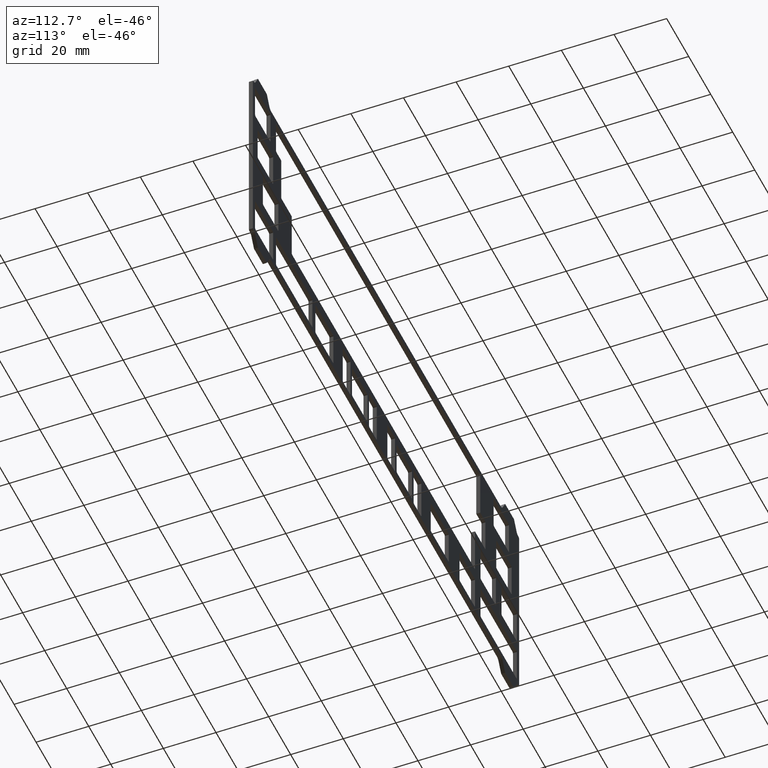
[diagram: clean part render]
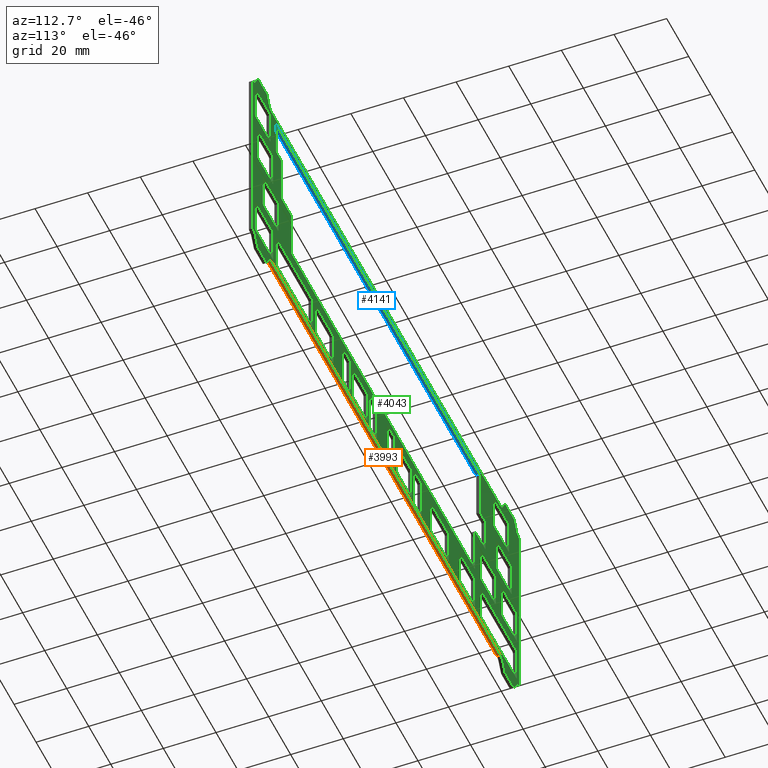
[diagram: same view with three faces highlighted in distinct colors, each labeled with its STEP entity id]
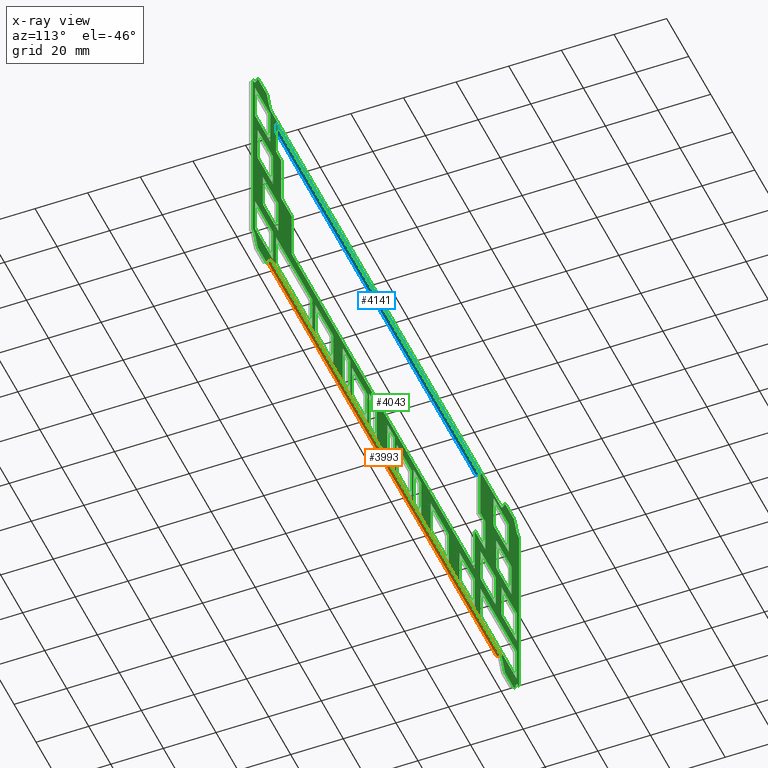
[diagram: x-ray of the same camera — body ghosted, the three highlighted faces saturated]
A machine part, auxiliary view with three faces highlighted in distinct colors.
The next image is the same camera in x-ray (body ghosted, the three faces saturated) — at least one of them is partly hidden behind the body in this view.
Their STEP definitions:

[orange] entity #3993 — the highlighted planar face has unit normal (0, 0, 1).
#347=FACE_OUTER_BOUND('',#553,.T.);
#553=EDGE_LOOP('',(#2671,#2672,#2673,#2674));
#805=LINE('',#5852,#1225);
#806=LINE('',#5855,#1226);
#807=LINE('',#5857,#1227);
#808=LINE('',#5858,#1228);
#1225=VECTOR('',#4631,10.);
#1226=VECTOR('',#4634,10.);
#1227=VECTOR('',#4635,10.);
#1228=VECTOR('',#4636,10.);
#1643=VERTEX_POINT('',#5848);
#1644=VERTEX_POINT('',#5850);
#1645=VERTEX_POINT('',#5854);
#1646=VERTEX_POINT('',#5856);
#2055=EDGE_CURVE('',#1644,#1643,#805,.T.);
#2056=EDGE_CURVE('',#1643,#1645,#806,.T.);
#2057=EDGE_CURVE('',#1646,#1644,#807,.T.);
#2058=EDGE_CURVE('',#1646,#1645,#808,.T.);
#2671=ORIENTED_EDGE('',*,*,#2056,.F.);
#2672=ORIENTED_EDGE('',*,*,#2055,.F.);
#2673=ORIENTED_EDGE('',*,*,#2057,.F.);
#2674=ORIENTED_EDGE('',*,*,#2058,.T.);
#3882=PLANE('',#4215);
#3993=ADVANCED_FACE('',(#347),#3882,.F.);
#4215=AXIS2_PLACEMENT_3D('',#5853,#4632,#4633);
#4631=DIRECTION('',(0.,-1.,0.));
#4632=DIRECTION('center_axis',(4.26199896539979E-17,0.,1.));
#4633=DIRECTION('ref_axis',(-1.,1.77290827043069E-32,4.26199896539979E-17));
#4634=DIRECTION('',(1.,-1.77290827043069E-32,-4.26199896539979E-17));
#4635=DIRECTION('',(-1.,1.77290827043069E-32,4.26199896539979E-17));
#4636=DIRECTION('',(0.,-1.,0.));
#5848=CARTESIAN_POINT('',(-11.5911497308105,-18.175,55.1999999999999));
#5850=CARTESIAN_POINT('',(-11.5911497308105,-16.675,55.1999999999999));
#5852=CARTESIAN_POINT('',(-11.5911497308105,-16.675,55.1999999999999));
#5853=CARTESIAN_POINT('Origin',(196.80364973081,-16.675,55.1999999999999));
#5854=CARTESIAN_POINT('',(196.80364973081,-18.175,55.1999999999999));
#5855=CARTESIAN_POINT('',(144.704949865405,-18.175,55.1999999999999));
#5856=CARTESIAN_POINT('',(196.80364973081,-16.675,55.1999999999999));
#5857=CARTESIAN_POINT('',(144.704949865405,-16.675,55.1999999999999));
#5858=CARTESIAN_POINT('',(196.80364973081,-16.675,55.1999999999999));

[blue] entity #4141 — the highlighted planar face has unit normal (-0, 0, -1).
#495=FACE_OUTER_BOUND('',#741,.T.);
#741=EDGE_LOOP('',(#3663,#3664,#3665,#3666));
#968=LINE('',#6359,#1388);
#1004=LINE('',#6500,#1424);
#1163=LINE('',#6946,#1583);
#1164=LINE('',#6948,#1584);
#1388=VECTOR('',#5074,10.);
#1424=VECTOR('',#5184,10.);
#1583=VECTOR('',#5665,10.);
#1584=VECTOR('',#5668,10.);
#1847=VERTEX_POINT('',#6356);
#1848=VERTEX_POINT('',#6358);
#1915=VERTEX_POINT('',#6497);
#1916=VERTEX_POINT('',#6499);
#2308=EDGE_CURVE('',#1848,#1847,#968,.T.);
#2380=EDGE_CURVE('',#1915,#1916,#1004,.T.);
#2603=EDGE_CURVE('',#1847,#1916,#1163,.T.);
#2604=EDGE_CURVE('',#1848,#1915,#1164,.T.);
#3663=ORIENTED_EDGE('',*,*,#2308,.T.);
#3664=ORIENTED_EDGE('',*,*,#2603,.T.);
#3665=ORIENTED_EDGE('',*,*,#2380,.F.);
#3666=ORIENTED_EDGE('',*,*,#2604,.F.);
#3961=PLANE('',#4553);
#4141=ADVANCED_FACE('',(#495),#3961,.T.);
#4553=AXIS2_PLACEMENT_3D('',#6947,#5666,#5667);
#5074=DIRECTION('',(-1.,-3.6977854932235E-31,1.78779921685247E-15));
#5184=DIRECTION('',(-1.,1.89630025293512E-32,3.70629087897233E-17));
#5665=DIRECTION('',(2.71926214689378E-32,1.,2.22044604925031E-16));
#5666=DIRECTION('center_axis',(-1.78779921685247E-15,2.22044604925031E-16,
-1.));
#5667=DIRECTION('ref_axis',(-1.,-3.6977854932235E-31,1.78779921685247E-15));
#5668=DIRECTION('',(2.71926214689378E-32,1.,2.22044604925031E-16));
#6356=CARTESIAN_POINT('',(7.52499999999998,-18.175,128.35));
#6358=CARTESIAN_POINT('',(191.975,-18.175,128.35));
#6359=CARTESIAN_POINT('',(20.5249999999999,-18.175,128.35));
#6497=CARTESIAN_POINT('',(191.975,-16.675,128.35));
#6499=CARTESIAN_POINT('',(7.52499999999998,-16.675,128.35));
#6500=CARTESIAN_POINT('',(191.975,-16.675,128.35));
#6946=CARTESIAN_POINT('',(7.52499999999998,-18.175,128.35));
#6947=CARTESIAN_POINT('Origin',(20.5249999999999,-18.175,128.35));
#6948=CARTESIAN_POINT('',(191.975,-18.175,128.35));

[green] entity #4043 — the highlighted planar face has unit normal (0, 1, 0).
#35=FACE_BOUND('',#624,.T.);
#36=FACE_BOUND('',#625,.T.);
#37=FACE_BOUND('',#626,.T.);
#38=FACE_BOUND('',#627,.T.);
#39=FACE_BOUND('',#628,.T.);
#40=FACE_BOUND('',#629,.T.);
#41=FACE_BOUND('',#630,.T.);
#42=FACE_BOUND('',#631,.T.);
#43=FACE_BOUND('',#632,.T.);
#44=FACE_BOUND('',#633,.T.);
#45=FACE_BOUND('',#634,.T.);
#46=FACE_BOUND('',#635,.T.);
#47=FACE_BOUND('',#636,.T.);
#48=FACE_BOUND('',#637,.T.);
#49=FACE_BOUND('',#638,.T.);
#50=FACE_BOUND('',#639,.T.);
#51=FACE_BOUND('',#640,.T.);
#52=FACE_BOUND('',#641,.T.);
#53=FACE_BOUND('',#642,.T.);
#54=FACE_BOUND('',#643,.T.);
#56=CIRCLE('',#4214,1.99999999999995);
#58=CIRCLE('',#4218,1.99999999999997);
#60=CIRCLE('',#4224,1.99999999999999);
#62=CIRCLE('',#4228,0.499999999999972);
#64=CIRCLE('',#4232,0.499999999999989);
#66=CIRCLE('',#4236,1.99999999999999);
#68=CIRCLE('',#4242,1.99999999999996);
#70=CIRCLE('',#4246,1.99999999999996);
#72=CIRCLE('',#4252,1.99999999999999);
#74=CIRCLE('',#4256,0.499999999999985);
#76=CIRCLE('',#4260,0.500000000000025);
#78=CIRCLE('',#4264,2.);
#80=CIRCLE('',#4267,0.499999999999998);
#81=CIRCLE('',#4270,0.500000000000007);
#84=CIRCLE('',#4274,0.499999999999998);
#85=CIRCLE('',#4277,0.500000000000007);
#88=CIRCLE('',#4281,0.499999999999998);
#89=CIRCLE('',#4284,0.500000000000007);
#92=CIRCLE('',#4288,0.499999999999998);
#94=CIRCLE('',#4292,0.499999999999989);
#171=CIRCLE('',#4380,0.500000000000025);
#172=CIRCLE('',#4381,0.500000000000007);
#173=CIRCLE('',#4382,0.500000000000007);
#174=CIRCLE('',#4383,0.500000000000025);
#175=CIRCLE('',#4384,0.500000000000007);
#176=CIRCLE('',#4385,0.500000000000025);
#177=CIRCLE('',#4386,0.500000000000025);
#178=CIRCLE('',#4387,0.499999999999989);
#179=CIRCLE('',#4388,0.499999999999998);
#180=CIRCLE('',#4389,0.499999999999998);
#181=CIRCLE('',#4390,0.499999999999998);
#182=CIRCLE('',#4391,0.5);
#183=CIRCLE('',#4392,0.500000000000007);
#184=CIRCLE('',#4393,0.500000000000007);
#185=CIRCLE('',#4394,0.499999999999998);
#186=CIRCLE('',#4395,0.499999999999998);
#187=CIRCLE('',#4396,0.500000000000007);
#188=CIRCLE('',#4397,0.499999999999998);
#189=CIRCLE('',#4398,0.500000000000007);
#190=CIRCLE('',#4399,0.499999999999998);
#191=CIRCLE('',#4400,0.499999999999998);
#192=CIRCLE('',#4401,0.499999999999998);
#193=CIRCLE('',#4402,0.499999999999998);
#194=CIRCLE('',#4403,0.499999999999998);
#195=CIRCLE('',#4404,0.500000000000007);
#196=CIRCLE('',#4405,0.499999999999998);
#197=CIRCLE('',#4406,0.500000000000007);
#198=CIRCLE('',#4407,0.499999999999998);
#199=CIRCLE('',#4408,0.499999999999998);
#200=CIRCLE('',#4409,0.499999999999998);
#201=CIRCLE('',#4410,0.499999999999998);
#202=CIRCLE('',#4411,0.499999999999998);
#203=CIRCLE('',#4412,0.500000000000007);
#204=CIRCLE('',#4413,0.499999999999998);
#205=CIRCLE('',#4414,0.499999999999972);
#206=CIRCLE('',#4415,0.499999999999998);
#207=CIRCLE('',#4416,0.500000000000007);
#208=CIRCLE('',#4417,0.499999999999998);
#209=CIRCLE('',#4418,0.500000000000007);
#210=CIRCLE('',#4419,0.499999999999998);
#211=CIRCLE('',#4420,0.499999999999998);
#212=CIRCLE('',#4421,0.499999999999998);
#213=CIRCLE('',#4422,0.5);
#214=CIRCLE('',#4423,0.499999999999998);
#215=CIRCLE('',#4424,0.499999999999998);
#216=CIRCLE('',#4425,0.500000000000007);
#217=CIRCLE('',#4426,0.499999999999998);
#218=CIRCLE('',#4427,0.500000000000007);
#219=CIRCLE('',#4428,0.5);
#220=CIRCLE('',#4429,0.499999999999998);
#221=CIRCLE('',#4430,0.5);
#222=CIRCLE('',#4431,0.499999999999998);
#223=CIRCLE('',#4432,0.500000000000007);
#224=CIRCLE('',#4433,0.5);
#225=CIRCLE('',#4434,0.500000000000007);
#226=CIRCLE('',#4435,0.5);
#227=CIRCLE('',#4436,0.5);
#228=CIRCLE('',#4437,0.5);
#229=CIRCLE('',#4438,0.5);
#230=CIRCLE('',#4439,0.5);
#231=CIRCLE('',#4440,0.500000000000007);
#232=CIRCLE('',#4441,0.499999999999998);
#233=CIRCLE('',#4442,0.500000000000007);
#234=CIRCLE('',#4443,0.499999999999998);
#235=CIRCLE('',#4444,0.500000000000007);
#236=CIRCLE('',#4445,0.499999999999998);
#237=CIRCLE('',#4446,0.500000000000007);
#238=CIRCLE('',#4447,0.499999999999998);
#239=CIRCLE('',#4448,0.499999999999976);
#240=CIRCLE('',#4449,0.499999999999972);
#241=CIRCLE('',#4450,0.499999999999998);
#242=CIRCLE('',#4451,0.499999999999972);
#243=CIRCLE('',#4452,0.500000000000016);
#244=CIRCLE('',#4453,0.500000000000003);
#245=CIRCLE('',#4454,0.500000000000016);
#246=CIRCLE('',#4455,0.499999999999994);
#397=FACE_OUTER_BOUND('',#623,.T.);
#623=EDGE_LOOP('',(#3071,#3072,#3073,#3074,#3075,#3076,#3077,#3078,#3079,
#3080,#3081,#3082,#3083,#3084,#3085,#3086,#3087,#3088,#3089,#3090,#3091,
#3092,#3093,#3094,#3095,#3096,#3097,#3098,#3099,#3100,#3101,#3102));
#624=EDGE_LOOP('',(#3103,#3104,#3105,#3106,#3107,#3108,#3109,#3110));
#625=EDGE_LOOP('',(#3111,#3112,#3113,#3114,#3115,#3116,#3117,#3118));
#626=EDGE_LOOP('',(#3119,#3120,#3121,#3122,#3123,#3124,#3125,#3126));
#627=EDGE_LOOP('',(#3127,#3128,#3129,#3130,#3131,#3132,#3133,#3134));
#628=EDGE_LOOP('',(#3135,#3136,#3137,#3138,#3139,#3140,#3141,#3142,#3143,
#3144,#3145,#3146,#3147,#3148,#3149,#3150,#3151,#3152,#3153,#3154));
#629=EDGE_LOOP('',(#3155,#3156,#3157,#3158,#3159,#3160,#3161,#3162));
#630=EDGE_LOOP('',(#3163,#3164,#3165,#3166,#3167,#3168,#3169,#3170));
#631=EDGE_LOOP('',(#3171,#3172,#3173,#3174,#3175,#3176,#3177,#3178));
#632=EDGE_LOOP('',(#3179,#3180,#3181,#3182,#3183,#3184,#3185,#3186));
#633=EDGE_LOOP('',(#3187,#3188,#3189,#3190,#3191,#3192,#3193,#3194));
#634=EDGE_LOOP('',(#3195,#3196,#3197,#3198,#3199,#3200,#3201,#3202));
#635=EDGE_LOOP('',(#3203,#3204,#3205,#3206,#3207,#3208,#3209,#3210));
#636=EDGE_LOOP('',(#3211,#3212,#3213,#3214,#3215,#3216,#3217,#3218));
#637=EDGE_LOOP('',(#3219,#3220,#3221,#3222,#3223,#3224,#3225,#3226));
#638=EDGE_LOOP('',(#3227,#3228,#3229,#3230,#3231,#3232,#3233,#3234));
#639=EDGE_LOOP('',(#3235,#3236,#3237,#3238,#3239,#3240,#3241,#3242));
#640=EDGE_LOOP('',(#3243,#3244,#3245,#3246,#3247,#3248,#3249,#3250));
#641=EDGE_LOOP('',(#3251,#3252,#3253,#3254,#3255,#3256,#3257,#3258));
#642=EDGE_LOOP('',(#3259,#3260,#3261,#3262,#3263,#3264,#3265,#3266));
#643=EDGE_LOOP('',(#3267,#3268,#3269,#3270,#3271,#3272,#3273,#3274));
#797=LINE('',#5833,#1217);
#800=LINE('',#5839,#1220);
#803=LINE('',#5845,#1223);
#807=LINE('',#5857,#1227);
#811=LINE('',#5869,#1231);
#814=LINE('',#5875,#1234);
#817=LINE('',#5881,#1237);
#821=LINE('',#5893,#1241);
#825=LINE('',#5905,#1245);
#829=LINE('',#5917,#1249);
#833=LINE('',#5929,#1253);
#836=LINE('',#5935,#1256);
#839=LINE('',#5941,#1259);
#843=LINE('',#5953,#1263);
#847=LINE('',#5965,#1267);
#850=LINE('',#5971,#1270);
#853=LINE('',#5977,#1273);
#857=LINE('',#5989,#1277);
#861=LINE('',#6001,#1281);
#865=LINE('',#6013,#1285);
#871=LINE('',#6032,#1291);
#877=LINE('',#6053,#1297);
#883=LINE('',#6074,#1303);
#889=LINE('',#6095,#1309);
#893=LINE('',#6107,#1313);
#894=LINE('',#6110,#1314);
#897=LINE('',#6116,#1317);
#900=LINE('',#6122,#1320);
#903=LINE('',#6128,#1323);
#908=LINE('',#6137,#1328);
#911=LINE('',#6143,#1331);
#914=LINE('',#6149,#1334);
#916=LINE('',#6155,#1336);
#994=LINE('',#6461,#1414);
#995=LINE('',#6466,#1415);
#996=LINE('',#6471,#1416);
#997=LINE('',#6476,#1417);
#998=LINE('',#6480,#1418);
#999=LINE('',#6484,#1419);
#1000=LINE('',#6486,#1420);
#1001=LINE('',#6490,#1421);
#1002=LINE('',#6492,#1422);
#1003=LINE('',#6496,#1423);
#1004=LINE('',#6500,#1424);
#1005=LINE('',#6504,#1425);
#1006=LINE('',#6506,#1426);
#1007=LINE('',#6510,#1427);
#1008=LINE('',#6513,#1428);
#1009=LINE('',#6517,#1429);
#1010=LINE('',#6521,#1430);
#1011=LINE('',#6525,#1431);
#1012=LINE('',#6529,#1432);
#1013=LINE('',#6533,#1433);
#1014=LINE('',#6537,#1434);
#1015=LINE('',#6541,#1435);
#1016=LINE('',#6545,#1436);
#1017=LINE('',#6549,#1437);
#1018=LINE('',#6553,#1438);
#1019=LINE('',#6557,#1439);
#1020=LINE('',#6561,#1440);
#1021=LINE('',#6565,#1441);
#1022=LINE('',#6569,#1442);
#1023=LINE('',#6573,#1443);
#1024=LINE('',#6577,#1444);
#1025=LINE('',#6581,#1445);
#1026=LINE('',#6585,#1446);
#1027=LINE('',#6589,#1447);
#1028=LINE('',#6593,#1448);
#1029=LINE('',#6597,#1449);
#1030=LINE('',#6601,#1450);
#1031=LINE('',#6605,#1451);
#1032=LINE('',#6609,#1452);
#1033=LINE('',#6613,#1453);
#1034=LINE('',#6617,#1454);
#1035=LINE('',#6621,#1455);
#1036=LINE('',#6625,#1456);
#1037=LINE('',#6631,#1457);
#1038=LINE('',#6635,#1458);
#1039=LINE('',#6639,#1459);
#1040=LINE('',#6642,#1460);
#1041=LINE('',#6645,#1461);
#1042=LINE('',#6649,#1462);
#1043=LINE('',#6653,#1463);
#1044=LINE('',#6657,#1464);
#1045=LINE('',#6661,#1465);
#1046=LINE('',#6665,#1466);
#1047=LINE('',#6669,#1467);
#1048=LINE('',#6673,#1468);
#1049=LINE('',#6677,#1469);
#1050=LINE('',#6681,#1470);
#1051=LINE('',#6685,#1471);
#1052=LINE('',#6689,#1472);
#1053=LINE('',#6693,#1473);
#1054=LINE('',#6697,#1474);
#1055=LINE('',#6701,#1475);
#1056=LINE('',#6705,#1476);
#1057=LINE('',#6709,#1477);
#1058=LINE('',#6713,#1478);
#1059=LINE('',#6717,#1479);
#1060=LINE('',#6721,#1480);
#1061=LINE('',#6725,#1481);
#1062=LINE('',#6729,#1482);
#1063=LINE('',#6733,#1483);
#1064=LINE('',#6737,#1484);
#1065=LINE('',#6741,#1485);
#1066=LINE('',#6745,#1486);
#1067=LINE('',#6749,#1487);
#1068=LINE('',#6753,#1488);
#1217=VECTOR('',#4613,10.);
#1220=VECTOR('',#4618,10.);
#1223=VECTOR('',#4623,10.);
#1227=VECTOR('',#4635,10.);
#1231=VECTOR('',#4647,10.);
#1234=VECTOR('',#4652,10.);
#1237=VECTOR('',#4657,10.);
#1241=VECTOR('',#4669,10.);
#1245=VECTOR('',#4681,10.);
#1249=VECTOR('',#4693,10.);
#1253=VECTOR('',#4705,10.);
#1256=VECTOR('',#4710,10.);
#1259=VECTOR('',#4715,10.);
#1263=VECTOR('',#4727,10.);
#1267=VECTOR('',#4739,10.);
#1270=VECTOR('',#4744,10.);
#1273=VECTOR('',#4749,10.);
#1277=VECTOR('',#4761,10.);
#1281=VECTOR('',#4773,10.);
#1285=VECTOR('',#4785,10.);
#1291=VECTOR('',#4805,10.);
#1297=VECTOR('',#4825,10.);
#1303=VECTOR('',#4845,10.);
#1309=VECTOR('',#4865,10.);
#1313=VECTOR('',#4877,10.);
#1314=VECTOR('',#4880,10.);
#1317=VECTOR('',#4885,10.);
#1320=VECTOR('',#4890,10.);
#1323=VECTOR('',#4895,10.);
#1328=VECTOR('',#4902,10.);
#1331=VECTOR('',#4907,10.);
#1334=VECTOR('',#4912,10.);
#1336=VECTOR('',#4916,10.);
#1414=VECTOR('',#5152,10.);
#1415=VECTOR('',#5157,10.);
#1416=VECTOR('',#5162,10.);
#1417=VECTOR('',#5167,10.);
#1418=VECTOR('',#5170,10.);
#1419=VECTOR('',#5173,10.);
#1420=VECTOR('',#5174,10.);
#1421=VECTOR('',#5177,10.);
#1422=VECTOR('',#5178,10.);
#1423=VECTOR('',#5181,10.);
#1424=VECTOR('',#5184,10.);
#1425=VECTOR('',#5187,10.);
#1426=VECTOR('',#5188,10.);
#1427=VECTOR('',#5191,10.);
#1428=VECTOR('',#5194,10.);
#1429=VECTOR('',#5197,10.);
#1430=VECTOR('',#5200,10.);
#1431=VECTOR('',#5203,10.);
#1432=VECTOR('',#5206,10.);
#1433=VECTOR('',#5209,10.);
#1434=VECTOR('',#5212,10.);
#1435=VECTOR('',#5215,10.);
#1436=VECTOR('',#5218,10.);
#1437=VECTOR('',#5221,10.);
#1438=VECTOR('',#5224,10.);
#1439=VECTOR('',#5227,10.);
#1440=VECTOR('',#5230,10.);
#1441=VECTOR('',#5233,10.);
#1442=VECTOR('',#5236,10.);
#1443=VECTOR('',#5239,10.);
#1444=VECTOR('',#5242,10.);
#1445=VECTOR('',#5245,10.);
#1446=VECTOR('',#5248,10.);
#1447=VECTOR('',#5251,10.);
#1448=VECTOR('',#5254,10.);
#1449=VECTOR('',#5257,10.);
#1450=VECTOR('',#5260,10.);
#1451=VECTOR('',#5263,10.);
#1452=VECTOR('',#5266,10.);
#1453=VECTOR('',#5269,10.);
#1454=VECTOR('',#5272,10.);
#1455=VECTOR('',#5275,10.);
#1456=VECTOR('',#5278,10.);
#1457=VECTOR('',#5283,10.);
#1458=VECTOR('',#5286,10.);
#1459=VECTOR('',#5289,10.);
#1460=VECTOR('',#5292,10.);
#1461=VECTOR('',#5293,10.);
#1462=VECTOR('',#5296,10.);
#1463=VECTOR('',#5299,10.);
#1464=VECTOR('',#5302,10.);
#1465=VECTOR('',#5305,10.);
#1466=VECTOR('',#5308,10.);
#1467=VECTOR('',#5311,10.);
#1468=VECTOR('',#5314,10.);
#1469=VECTOR('',#5317,10.);
#1470=VECTOR('',#5320,10.);
#1471=VECTOR('',#5323,10.);
#1472=VECTOR('',#5326,10.);
#1473=VECTOR('',#5329,10.);
#1474=VECTOR('',#5332,10.);
#1475=VECTOR('',#5335,10.);
#1476=VECTOR('',#5338,10.);
#1477=VECTOR('',#5341,10.);
#1478=VECTOR('',#5344,10.);
#1479=VECTOR('',#5347,10.);
#1480=VECTOR('',#5350,10.);
#1481=VECTOR('',#5353,10.);
#1482=VECTOR('',#5356,10.);
#1483=VECTOR('',#5359,10.);
#1484=VECTOR('',#5362,10.);
#1485=VECTOR('',#5365,10.);
#1486=VECTOR('',#5368,10.);
#1487=VECTOR('',#5371,10.);
#1488=VECTOR('',#5374,10.);
#1637=VERTEX_POINT('',#5830);
#1638=VERTEX_POINT('',#5832);
#1640=VERTEX_POINT('',#5838);
#1642=VERTEX_POINT('',#5844);
#1644=VERTEX_POINT('',#5850);
#1646=VERTEX_POINT('',#5856);
#1648=VERTEX_POINT('',#5862);
#1650=VERTEX_POINT('',#5868);
#1652=VERTEX_POINT('',#5874);
#1654=VERTEX_POINT('',#5880);
#1656=VERTEX_POINT('',#5886);
#1658=VERTEX_POINT('',#5892);
#1660=VERTEX_POINT('',#5898);
#1662=VERTEX_POINT('',#5904);
#1664=VERTEX_POINT('',#5910);
#1666=VERTEX_POINT('',#5916);
#1668=VERTEX_POINT('',#5922);
#1670=VERTEX_POINT('',#5928);
#1672=VERTEX_POINT('',#5934);
#1674=VERTEX_POINT('',#5940);
#1676=VERTEX_POINT('',#5946);
#1678=VERTEX_POINT('',#5952);
#1680=VERTEX_POINT('',#5958);
#1682=VERTEX_POINT('',#5964);
#1684=VERTEX_POINT('',#5970);
#1686=VERTEX_POINT('',#5976);
#1688=VERTEX_POINT('',#5982);
#1690=VERTEX_POINT('',#5988);
#1692=VERTEX_POINT('',#5994);
#1694=VERTEX_POINT('',#6000);
#1696=VERTEX_POINT('',#6006);
#1698=VERTEX_POINT('',#6012);
#1701=VERTEX_POINT('',#6022);
#1702=VERTEX_POINT('',#6024);
#1704=VERTEX_POINT('',#6030);
#1705=VERTEX_POINT('',#6034);
#1709=VERTEX_POINT('',#6043);
#1710=VERTEX_POINT('',#6045);
#1712=VERTEX_POINT('',#6051);
#1713=VERTEX_POINT('',#6055);
#1717=VERTEX_POINT('',#6064);
#1718=VERTEX_POINT('',#6066);
#1720=VERTEX_POINT('',#6072);
#1721=VERTEX_POINT('',#6076);
#1725=VERTEX_POINT('',#6085);
#1726=VERTEX_POINT('',#6087);
#1728=VERTEX_POINT('',#6093);
#1730=VERTEX_POINT('',#6099);
#1732=VERTEX_POINT('',#6105);
#1733=VERTEX_POINT('',#6109);
#1735=VERTEX_POINT('',#6115);
#1737=VERTEX_POINT('',#6121);
#1739=VERTEX_POINT('',#6127);
#1742=VERTEX_POINT('',#6135);
#1744=VERTEX_POINT('',#6141);
#1746=VERTEX_POINT('',#6147);
#1748=VERTEX_POINT('',#6152);
#1749=VERTEX_POINT('',#6154);
#1897=VERTEX_POINT('',#6458);
#1898=VERTEX_POINT('',#6460);
#1899=VERTEX_POINT('',#6463);
#1900=VERTEX_POINT('',#6465);
#1901=VERTEX_POINT('',#6468);
#1902=VERTEX_POINT('',#6470);
#1903=VERTEX_POINT('',#6473);
#1904=VERTEX_POINT('',#6475);
#1905=VERTEX_POINT('',#6478);
#1906=VERTEX_POINT('',#6479);
#1907=VERTEX_POINT('',#6481);
#1908=VERTEX_POINT('',#6483);
#1909=VERTEX_POINT('',#6485);
#1910=VERTEX_POINT('',#6487);
#1911=VERTEX_POINT('',#6489);
#1912=VERTEX_POINT('',#6491);
#1913=VERTEX_POINT('',#6493);
#1914=VERTEX_POINT('',#6495);
#1915=VERTEX_POINT('',#6497);
#1916=VERTEX_POINT('',#6499);
#1917=VERTEX_POINT('',#6501);
#1918=VERTEX_POINT('',#6503);
#1919=VERTEX_POINT('',#6505);
#1920=VERTEX_POINT('',#6507);
#1921=VERTEX_POINT('',#6509);
#1922=VERTEX_POINT('',#6512);
#1923=VERTEX_POINT('',#6515);
#1924=VERTEX_POINT('',#6516);
#1925=VERTEX_POINT('',#6518);
#1926=VERTEX_POINT('',#6520);
#1927=VERTEX_POINT('',#6522);
#1928=VERTEX_POINT('',#6524);
#1929=VERTEX_POINT('',#6526);
#1930=VERTEX_POINT('',#6528);
#1931=VERTEX_POINT('',#6531);
#1932=VERTEX_POINT('',#6532);
#1933=VERTEX_POINT('',#6534);
#1934=VERTEX_POINT('',#6536);
#1935=VERTEX_POINT('',#6538);
#1936=VERTEX_POINT('',#6540);
#1937=VERTEX_POINT('',#6542);
#1938=VERTEX_POINT('',#6544);
#1939=VERTEX_POINT('',#6547);
#1940=VERTEX_POINT('',#6548);
#1941=VERTEX_POINT('',#6550);
#1942=VERTEX_POINT('',#6552);
#1943=VERTEX_POINT('',#6554);
#1944=VERTEX_POINT('',#6556);
#1945=VERTEX_POINT('',#6558);
#1946=VERTEX_POINT('',#6560);
#1947=VERTEX_POINT('',#6563);
#1948=VERTEX_POINT('',#6564);
#1949=VERTEX_POINT('',#6566);
#1950=VERTEX_POINT('',#6568);
#1951=VERTEX_POINT('',#6570);
#1952=VERTEX_POINT('',#6572);
#1953=VERTEX_POINT('',#6574);
#1954=VERTEX_POINT('',#6576);
#1955=VERTEX_POINT('',#6579);
#1956=VERTEX_POINT('',#6580);
#1957=VERTEX_POINT('',#6582);
#1958=VERTEX_POINT('',#6584);
#1959=VERTEX_POINT('',#6586);
#1960=VERTEX_POINT('',#6588);
#1961=VERTEX_POINT('',#6590);
#1962=VERTEX_POINT('',#6592);
#1963=VERTEX_POINT('',#6595);
#1964=VERTEX_POINT('',#6596);
#1965=VERTEX_POINT('',#6598);
#1966=VERTEX_POINT('',#6600);
#1967=VERTEX_POINT('',#6602);
#1968=VERTEX_POINT('',#6604);
#1969=VERTEX_POINT('',#6606);
#1970=VERTEX_POINT('',#6608);
#1971=VERTEX_POINT('',#6611);
#1972=VERTEX_POINT('',#6612);
#1973=VERTEX_POINT('',#6614);
#1974=VERTEX_POINT('',#6616);
#1975=VERTEX_POINT('',#6618);
#1976=VERTEX_POINT('',#6620);
#1977=VERTEX_POINT('',#6622);
#1978=VERTEX_POINT('',#6624);
#1979=VERTEX_POINT('',#6627);
#1980=VERTEX_POINT('',#6628);
#1981=VERTEX_POINT('',#6630);
#1982=VERTEX_POINT('',#6632);
#1983=VERTEX_POINT('',#6634);
#1984=VERTEX_POINT('',#6636);
#1985=VERTEX_POINT('',#6638);
#1986=VERTEX_POINT('',#6640);
#1987=VERTEX_POINT('',#6643);
#1988=VERTEX_POINT('',#6644);
#1989=VERTEX_POINT('',#6646);
#1990=VERTEX_POINT('',#6648);
#1991=VERTEX_POINT('',#6650);
#1992=VERTEX_POINT('',#6652);
#1993=VERTEX_POINT('',#6654);
#1994=VERTEX_POINT('',#6656);
#1995=VERTEX_POINT('',#6659);
#1996=VERTEX_POINT('',#6660);
#1997=VERTEX_POINT('',#6662);
#1998=VERTEX_POINT('',#6664);
#1999=VERTEX_POINT('',#6666);
#2000=VERTEX_POINT('',#6668);
#2001=VERTEX_POINT('',#6670);
#2002=VERTEX_POINT('',#6672);
#2003=VERTEX_POINT('',#6675);
#2004=VERTEX_POINT('',#6676);
#2005=VERTEX_POINT('',#6678);
#2006=VERTEX_POINT('',#6680);
#2007=VERTEX_POINT('',#6682);
#2008=VERTEX_POINT('',#6684);
#2009=VERTEX_POINT('',#6686);
#2010=VERTEX_POINT('',#6688);
#2011=VERTEX_POINT('',#6691);
#2012=VERTEX_POINT('',#6692);
#2013=VERTEX_POINT('',#6694);
#2014=VERTEX_POINT('',#6696);
#2015=VERTEX_POINT('',#6698);
#2016=VERTEX_POINT('',#6700);
#2017=VERTEX_POINT('',#6702);
#2018=VERTEX_POINT('',#6704);
#2019=VERTEX_POINT('',#6707);
#2020=VERTEX_POINT('',#6708);
#2021=VERTEX_POINT('',#6710);
#2022=VERTEX_POINT('',#6712);
#2023=VERTEX_POINT('',#6714);
#2024=VERTEX_POINT('',#6716);
#2025=VERTEX_POINT('',#6718);
#2026=VERTEX_POINT('',#6720);
#2027=VERTEX_POINT('',#6723);
#2028=VERTEX_POINT('',#6724);
#2029=VERTEX_POINT('',#6726);
#2030=VERTEX_POINT('',#6728);
#2031=VERTEX_POINT('',#6730);
#2032=VERTEX_POINT('',#6732);
#2033=VERTEX_POINT('',#6734);
#2034=VERTEX_POINT('',#6736);
#2035=VERTEX_POINT('',#6739);
#2036=VERTEX_POINT('',#6740);
#2037=VERTEX_POINT('',#6742);
#2038=VERTEX_POINT('',#6744);
#2039=VERTEX_POINT('',#6746);
#2040=VERTEX_POINT('',#6748);
#2041=VERTEX_POINT('',#6750);
#2042=VERTEX_POINT('',#6752);
#2045=EDGE_CURVE('',#1638,#1637,#797,.T.);
#2048=EDGE_CURVE('',#1640,#1638,#800,.T.);
#2051=EDGE_CURVE('',#1642,#1640,#803,.T.);
#2054=EDGE_CURVE('',#1644,#1642,#56,.T.);
#2057=EDGE_CURVE('',#1646,#1644,#807,.T.);
#2060=EDGE_CURVE('',#1648,#1646,#58,.T.);
#2063=EDGE_CURVE('',#1650,#1648,#811,.T.);
#2066=EDGE_CURVE('',#1652,#1650,#814,.T.);
#2069=EDGE_CURVE('',#1654,#1652,#817,.T.);
#2072=EDGE_CURVE('',#1656,#1654,#60,.T.);
#2075=EDGE_CURVE('',#1658,#1656,#821,.T.);
#2078=EDGE_CURVE('',#1660,#1658,#62,.T.);
#2081=EDGE_CURVE('',#1662,#1660,#825,.T.);
#2084=EDGE_CURVE('',#1664,#1662,#64,.T.);
#2087=EDGE_CURVE('',#1666,#1664,#829,.T.);
#2090=EDGE_CURVE('',#1668,#1666,#66,.T.);
#2093=EDGE_CURVE('',#1670,#1668,#833,.T.);
#2096=EDGE_CURVE('',#1672,#1670,#836,.T.);
#2099=EDGE_CURVE('',#1674,#1672,#839,.T.);
#2102=EDGE_CURVE('',#1676,#1674,#68,.T.);
#2105=EDGE_CURVE('',#1678,#1676,#843,.T.);
#2108=EDGE_CURVE('',#1680,#1678,#70,.T.);
#2111=EDGE_CURVE('',#1682,#1680,#847,.T.);
#2114=EDGE_CURVE('',#1684,#1682,#850,.T.);
#2117=EDGE_CURVE('',#1686,#1684,#853,.T.);
#2120=EDGE_CURVE('',#1688,#1686,#72,.T.);
#2123=EDGE_CURVE('',#1690,#1688,#857,.T.);
#2126=EDGE_CURVE('',#1692,#1690,#74,.T.);
#2129=EDGE_CURVE('',#1694,#1692,#861,.T.);
#2132=EDGE_CURVE('',#1696,#1694,#76,.T.);
#2135=EDGE_CURVE('',#1698,#1696,#865,.T.);
#2138=EDGE_CURVE('',#1637,#1698,#78,.T.);
#2141=EDGE_CURVE('',#1701,#1702,#80,.T.);
#2145=EDGE_CURVE('',#1701,#1704,#871,.T.);
#2146=EDGE_CURVE('',#1705,#1704,#81,.T.);
#2151=EDGE_CURVE('',#1709,#1710,#84,.T.);
#2155=EDGE_CURVE('',#1709,#1712,#877,.T.);
#2156=EDGE_CURVE('',#1713,#1712,#85,.T.);
#2161=EDGE_CURVE('',#1717,#1718,#88,.T.);
#2165=EDGE_CURVE('',#1717,#1720,#883,.T.);
#2166=EDGE_CURVE('',#1721,#1720,#89,.T.);
#2171=EDGE_CURVE('',#1725,#1726,#92,.T.);
#2175=EDGE_CURVE('',#1725,#1728,#889,.T.);
#2178=EDGE_CURVE('',#1730,#1728,#94,.T.);
#2181=EDGE_CURVE('',#1730,#1732,#893,.T.);
#2182=EDGE_CURVE('',#1733,#1702,#894,.T.);
#2185=EDGE_CURVE('',#1735,#1710,#897,.T.);
#2188=EDGE_CURVE('',#1737,#1718,#900,.T.);
#2191=EDGE_CURVE('',#1739,#1726,#903,.T.);
#2196=EDGE_CURVE('',#1705,#1742,#908,.T.);
#2199=EDGE_CURVE('',#1713,#1744,#911,.T.);
#2202=EDGE_CURVE('',#1721,#1746,#914,.T.);
#2204=EDGE_CURVE('',#1749,#1748,#916,.T.);
#2358=EDGE_CURVE('',#1732,#1897,#171,.T.);
#2359=EDGE_CURVE('',#1897,#1898,#994,.T.);
#2360=EDGE_CURVE('',#1898,#1739,#172,.T.);
#2361=EDGE_CURVE('',#1746,#1899,#173,.T.);
#2362=EDGE_CURVE('',#1899,#1900,#995,.T.);
#2363=EDGE_CURVE('',#1900,#1737,#174,.T.);
#2364=EDGE_CURVE('',#1744,#1901,#175,.T.);
#2365=EDGE_CURVE('',#1901,#1902,#996,.T.);
#2366=EDGE_CURVE('',#1902,#1735,#176,.T.);
#2367=EDGE_CURVE('',#1742,#1903,#177,.T.);
#2368=EDGE_CURVE('',#1903,#1904,#997,.T.);
#2369=EDGE_CURVE('',#1904,#1733,#178,.T.);
#2370=EDGE_CURVE('',#1905,#1906,#998,.T.);
#2371=EDGE_CURVE('',#1906,#1907,#179,.T.);
#2372=EDGE_CURVE('',#1907,#1908,#999,.T.);
#2373=EDGE_CURVE('',#1908,#1909,#1000,.T.);
#2374=EDGE_CURVE('',#1909,#1910,#180,.T.);
#2375=EDGE_CURVE('',#1910,#1911,#1001,.T.);
#2376=EDGE_CURVE('',#1911,#1912,#1002,.T.);
#2377=EDGE_CURVE('',#1912,#1913,#181,.T.);
#2378=EDGE_CURVE('',#1913,#1914,#1003,.T.);
#2379=EDGE_CURVE('',#1914,#1915,#182,.T.);
#2380=EDGE_CURVE('',#1915,#1916,#1004,.T.);
#2381=EDGE_CURVE('',#1916,#1917,#183,.T.);
#2382=EDGE_CURVE('',#1917,#1918,#1005,.T.);
#2383=EDGE_CURVE('',#1918,#1919,#1006,.T.);
#2384=EDGE_CURVE('',#1919,#1920,#184,.T.);
#2385=EDGE_CURVE('',#1920,#1921,#1007,.T.);
#2386=EDGE_CURVE('',#1921,#1749,#185,.T.);
#2387=EDGE_CURVE('',#1748,#1922,#1008,.T.);
#2388=EDGE_CURVE('',#1922,#1905,#186,.T.);
#2389=EDGE_CURVE('',#1923,#1924,#1009,.T.);
#2390=EDGE_CURVE('',#1924,#1925,#187,.T.);
#2391=EDGE_CURVE('',#1925,#1926,#1010,.T.);
#2392=EDGE_CURVE('',#1926,#1927,#188,.T.);
#2393=EDGE_CURVE('',#1927,#1928,#1011,.T.);
#2394=EDGE_CURVE('',#1928,#1929,#189,.T.);
#2395=EDGE_CURVE('',#1929,#1930,#1012,.T.);
#2396=EDGE_CURVE('',#1930,#1923,#190,.T.);
#2397=EDGE_CURVE('',#1931,#1932,#1013,.T.);
#2398=EDGE_CURVE('',#1932,#1933,#191,.T.);
#2399=EDGE_CURVE('',#1933,#1934,#1014,.T.);
#2400=EDGE_CURVE('',#1934,#1935,#192,.T.);
#2401=EDGE_CURVE('',#1935,#1936,#1015,.T.);
#2402=EDGE_CURVE('',#1936,#1937,#193,.T.);
#2403=EDGE_CURVE('',#1937,#1938,#1016,.T.);
#2404=EDGE_CURVE('',#1938,#1931,#194,.T.);
#2405=EDGE_CURVE('',#1939,#1940,#1017,.T.);
#2406=EDGE_CURVE('',#1940,#1941,#195,.T.);
#2407=EDGE_CURVE('',#1941,#1942,#1018,.T.);
#2408=EDGE_CURVE('',#1942,#1943,#196,.T.);
#2409=EDGE_CURVE('',#1943,#1944,#1019,.T.);
#2410=EDGE_CURVE('',#1944,#1945,#197,.T.);
#2411=EDGE_CURVE('',#1945,#1946,#1020,.T.);
#2412=EDGE_CURVE('',#1946,#1939,#198,.T.);
#2413=EDGE_CURVE('',#1947,#1948,#1021,.T.);
#2414=EDGE_CURVE('',#1948,#1949,#199,.T.);
#2415=EDGE_CURVE('',#1949,#1950,#1022,.T.);
#2416=EDGE_CURVE('',#1950,#1951,#200,.T.);
#2417=EDGE_CURVE('',#1951,#1952,#1023,.T.);
#2418=EDGE_CURVE('',#1952,#1953,#201,.T.);
#2419=EDGE_CURVE('',#1953,#1954,#1024,.T.);
#2420=EDGE_CURVE('',#1954,#1947,#202,.T.);
#2421=EDGE_CURVE('',#1955,#1956,#1025,.T.);
#2422=EDGE_CURVE('',#1956,#1957,#203,.T.);
#2423=EDGE_CURVE('',#1957,#1958,#1026,.T.);
#2424=EDGE_CURVE('',#1958,#1959,#204,.T.);
#2425=EDGE_CURVE('',#1959,#1960,#1027,.T.);
#2426=EDGE_CURVE('',#1960,#1961,#205,.T.);
#2427=EDGE_CURVE('',#1961,#1962,#1028,.T.);
#2428=EDGE_CURVE('',#1962,#1955,#206,.T.);
#2429=EDGE_CURVE('',#1963,#1964,#1029,.T.);
#2430=EDGE_CURVE('',#1964,#1965,#207,.T.);
#2431=EDGE_CURVE('',#1965,#1966,#1030,.T.);
#2432=EDGE_CURVE('',#1966,#1967,#208,.T.);
#2433=EDGE_CURVE('',#1967,#1968,#1031,.T.);
#2434=EDGE_CURVE('',#1968,#1969,#209,.T.);
#2435=EDGE_CURVE('',#1969,#1970,#1032,.T.);
#2436=EDGE_CURVE('',#1970,#1963,#210,.T.);
#2437=EDGE_CURVE('',#1971,#1972,#1033,.T.);
#2438=EDGE_CURVE('',#1972,#1973,#211,.T.);
#2439=EDGE_CURVE('',#1973,#1974,#1034,.T.);
#2440=EDGE_CURVE('',#1974,#1975,#212,.T.);
#2441=EDGE_CURVE('',#1975,#1976,#1035,.T.);
#2442=EDGE_CURVE('',#1976,#1977,#213,.T.);
#2443=EDGE_CURVE('',#1977,#1978,#1036,.T.);
#2444=EDGE_CURVE('',#1978,#1971,#214,.T.);
#2445=EDGE_CURVE('',#1979,#1980,#215,.T.);
#2446=EDGE_CURVE('',#1980,#1981,#1037,.T.);
#2447=EDGE_CURVE('',#1981,#1982,#216,.T.);
#2448=EDGE_CURVE('',#1982,#1983,#1038,.T.);
#2449=EDGE_CURVE('',#1983,#1984,#217,.T.);
#2450=EDGE_CURVE('',#1984,#1985,#1039,.T.);
#2451=EDGE_CURVE('',#1985,#1986,#218,.T.);
#2452=EDGE_CURVE('',#1986,#1979,#1040,.T.);
#2453=EDGE_CURVE('',#1987,#1988,#1041,.T.);
#2454=EDGE_CURVE('',#1988,#1989,#219,.T.);
#2455=EDGE_CURVE('',#1989,#1990,#1042,.T.);
#2456=EDGE_CURVE('',#1990,#1991,#220,.T.);
#2457=EDGE_CURVE('',#1991,#1992,#1043,.T.);
#2458=EDGE_CURVE('',#1992,#1993,#221,.T.);
#2459=EDGE_CURVE('',#1993,#1994,#1044,.T.);
#2460=EDGE_CURVE('',#1994,#1987,#222,.T.);
#2461=EDGE_CURVE('',#1995,#1996,#1045,.T.);
#2462=EDGE_CURVE('',#1996,#1997,#223,.T.);
#2463=EDGE_CURVE('',#1997,#1998,#1046,.T.);
#2464=EDGE_CURVE('',#1998,#1999,#224,.T.);
#2465=EDGE_CURVE('',#1999,#2000,#1047,.T.);
#2466=EDGE_CURVE('',#2000,#2001,#225,.T.);
#2467=EDGE_CURVE('',#2001,#2002,#1048,.T.);
#2468=EDGE_CURVE('',#2002,#1995,#226,.T.);
#2469=EDGE_CURVE('',#2003,#2004,#1049,.T.);
#2470=EDGE_CURVE('',#2004,#2005,#227,.T.);
#2471=EDGE_CURVE('',#2005,#2006,#1050,.T.);
#2472=EDGE_CURVE('',#2006,#2007,#228,.T.);
#2473=EDGE_CURVE('',#2007,#2008,#1051,.T.);
#2474=EDGE_CURVE('',#2008,#2009,#229,.T.);
#2475=EDGE_CURVE('',#2009,#2010,#1052,.T.);
#2476=EDGE_CURVE('',#2010,#2003,#230,.T.);
#2477=EDGE_CURVE('',#2011,#2012,#1053,.T.);
#2478=EDGE_CURVE('',#2012,#2013,#231,.T.);
#2479=EDGE_CURVE('',#2013,#2014,#1054,.T.);
#2480=EDGE_CURVE('',#2014,#2015,#232,.T.);
#2481=EDGE_CURVE('',#2015,#2016,#1055,.T.);
#2482=EDGE_CURVE('',#2016,#2017,#233,.T.);
#2483=EDGE_CURVE('',#2017,#2018,#1056,.T.);
#2484=EDGE_CURVE('',#2018,#2011,#234,.T.);
#2485=EDGE_CURVE('',#2019,#2020,#1057,.T.);
#2486=EDGE_CURVE('',#2020,#2021,#235,.T.);
#2487=EDGE_CURVE('',#2021,#2022,#1058,.T.);
#2488=EDGE_CURVE('',#2022,#2023,#236,.T.);
#2489=EDGE_CURVE('',#2023,#2024,#1059,.T.);
#2490=EDGE_CURVE('',#2024,#2025,#237,.T.);
#2491=EDGE_CURVE('',#2025,#2026,#1060,.T.);
#2492=EDGE_CURVE('',#2026,#2019,#238,.T.);
#2493=EDGE_CURVE('',#2027,#2028,#1061,.T.);
#2494=EDGE_CURVE('',#2028,#2029,#239,.T.);
#2495=EDGE_CURVE('',#2029,#2030,#1062,.T.);
#2496=EDGE_CURVE('',#2030,#2031,#240,.T.);
#2497=EDGE_CURVE('',#2031,#2032,#1063,.T.);
#2498=EDGE_CURVE('',#2032,#2033,#241,.T.);
#2499=EDGE_CURVE('',#2033,#2034,#1064,.T.);
#2500=EDGE_CURVE('',#2034,#2027,#242,.T.);
#2501=EDGE_CURVE('',#2035,#2036,#1065,.T.);
#2502=EDGE_CURVE('',#2036,#2037,#243,.T.);
#2503=EDGE_CURVE('',#2037,#2038,#1066,.T.);
#2504=EDGE_CURVE('',#2038,#2039,#244,.T.);
#2505=EDGE_CURVE('',#2039,#2040,#1067,.T.);
#2506=EDGE_CURVE('',#2040,#2041,#245,.T.);
#2507=EDGE_CURVE('',#2041,#2042,#1068,.T.);
#2508=EDGE_CURVE('',#2042,#2035,#246,.T.);
#3071=ORIENTED_EDGE('',*,*,#2093,.T.);
#3072=ORIENTED_EDGE('',*,*,#2090,.T.);
#3073=ORIENTED_EDGE('',*,*,#2087,.T.);
#3074=ORIENTED_EDGE('',*,*,#2084,.T.);
#3075=ORIENTED_EDGE('',*,*,#2081,.T.);
#3076=ORIENTED_EDGE('',*,*,#2078,.T.);
#3077=ORIENTED_EDGE('',*,*,#2075,.T.);
#3078=ORIENTED_EDGE('',*,*,#2072,.T.);
#3079=ORIENTED_EDGE('',*,*,#2069,.T.);
#3080=ORIENTED_EDGE('',*,*,#2066,.T.);
#3081=ORIENTED_EDGE('',*,*,#2063,.T.);
#3082=ORIENTED_EDGE('',*,*,#2060,.T.);
#3083=ORIENTED_EDGE('',*,*,#2057,.T.);
#3084=ORIENTED_EDGE('',*,*,#2054,.T.);
#3085=ORIENTED_EDGE('',*,*,#2051,.T.);
#3086=ORIENTED_EDGE('',*,*,#2048,.T.);
#3087=ORIENTED_EDGE('',*,*,#2045,.T.);
#3088=ORIENTED_EDGE('',*,*,#2138,.T.);
#3089=ORIENTED_EDGE('',*,*,#2135,.T.);
#3090=ORIENTED_EDGE('',*,*,#2132,.T.);
#3091=ORIENTED_EDGE('',*,*,#2129,.T.);
#3092=ORIENTED_EDGE('',*,*,#2126,.T.);
#3093=ORIENTED_EDGE('',*,*,#2123,.T.);
#3094=ORIENTED_EDGE('',*,*,#2120,.T.);
#3095=ORIENTED_EDGE('',*,*,#2117,.T.);
#3096=ORIENTED_EDGE('',*,*,#2114,.T.);
#3097=ORIENTED_EDGE('',*,*,#2111,.T.);
#3098=ORIENTED_EDGE('',*,*,#2108,.T.);
#3099=ORIENTED_EDGE('',*,*,#2105,.T.);
#3100=ORIENTED_EDGE('',*,*,#2102,.T.);
#3101=ORIENTED_EDGE('',*,*,#2099,.T.);
#3102=ORIENTED_EDGE('',*,*,#2096,.T.);
#3103=ORIENTED_EDGE('',*,*,#2175,.T.);
#3104=ORIENTED_EDGE('',*,*,#2178,.F.);
#3105=ORIENTED_EDGE('',*,*,#2181,.T.);
#3106=ORIENTED_EDGE('',*,*,#2358,.T.);
#3107=ORIENTED_EDGE('',*,*,#2359,.T.);
#3108=ORIENTED_EDGE('',*,*,#2360,.T.);
#3109=ORIENTED_EDGE('',*,*,#2191,.T.);
#3110=ORIENTED_EDGE('',*,*,#2171,.F.);
#3111=ORIENTED_EDGE('',*,*,#2202,.T.);
#3112=ORIENTED_EDGE('',*,*,#2361,.T.);
#3113=ORIENTED_EDGE('',*,*,#2362,.T.);
#3114=ORIENTED_EDGE('',*,*,#2363,.T.);
#3115=ORIENTED_EDGE('',*,*,#2188,.T.);
#3116=ORIENTED_EDGE('',*,*,#2161,.F.);
#3117=ORIENTED_EDGE('',*,*,#2165,.T.);
#3118=ORIENTED_EDGE('',*,*,#2166,.F.);
#3119=ORIENTED_EDGE('',*,*,#2199,.T.);
#3120=ORIENTED_EDGE('',*,*,#2364,.T.);
#3121=ORIENTED_EDGE('',*,*,#2365,.T.);
#3122=ORIENTED_EDGE('',*,*,#2366,.T.);
#3123=ORIENTED_EDGE('',*,*,#2185,.T.);
#3124=ORIENTED_EDGE('',*,*,#2151,.F.);
#3125=ORIENTED_EDGE('',*,*,#2155,.T.);
#3126=ORIENTED_EDGE('',*,*,#2156,.F.);
#3127=ORIENTED_EDGE('',*,*,#2196,.T.);
#3128=ORIENTED_EDGE('',*,*,#2367,.T.);
#3129=ORIENTED_EDGE('',*,*,#2368,.T.);
#3130=ORIENTED_EDGE('',*,*,#2369,.T.);
#3131=ORIENTED_EDGE('',*,*,#2182,.T.);
#3132=ORIENTED_EDGE('',*,*,#2141,.F.);
#3133=ORIENTED_EDGE('',*,*,#2145,.T.);
#3134=ORIENTED_EDGE('',*,*,#2146,.F.);
#3135=ORIENTED_EDGE('',*,*,#2370,.T.);
#3136=ORIENTED_EDGE('',*,*,#2371,.T.);
#3137=ORIENTED_EDGE('',*,*,#2372,.T.);
#3138=ORIENTED_EDGE('',*,*,#2373,.T.);
#3139=ORIENTED_EDGE('',*,*,#2374,.T.);
#3140=ORIENTED_EDGE('',*,*,#2375,.T.);
#3141=ORIENTED_EDGE('',*,*,#2376,.T.);
#3142=ORIENTED_EDGE('',*,*,#2377,.T.);
#3143=ORIENTED_EDGE('',*,*,#2378,.T.);
#3144=ORIENTED_EDGE('',*,*,#2379,.T.);
#3145=ORIENTED_EDGE('',*,*,#2380,.T.);
#3146=ORIENTED_EDGE('',*,*,#2381,.T.);
#3147=ORIENTED_EDGE('',*,*,#2382,.T.);
#3148=ORIENTED_EDGE('',*,*,#2383,.T.);
#3149=ORIENTED_EDGE('',*,*,#2384,.T.);
#3150=ORIENTED_EDGE('',*,*,#2385,.T.);
#3151=ORIENTED_EDGE('',*,*,#2386,.T.);
#3152=ORIENTED_EDGE('',*,*,#2204,.T.);
#3153=ORIENTED_EDGE('',*,*,#2387,.T.);
#3154=ORIENTED_EDGE('',*,*,#2388,.T.);
#3155=ORIENTED_EDGE('',*,*,#2389,.T.);
#3156=ORIENTED_EDGE('',*,*,#2390,.T.);
#3157=ORIENTED_EDGE('',*,*,#2391,.T.);
#3158=ORIENTED_EDGE('',*,*,#2392,.T.);
#3159=ORIENTED_EDGE('',*,*,#2393,.T.);
#3160=ORIENTED_EDGE('',*,*,#2394,.T.);
#3161=ORIENTED_EDGE('',*,*,#2395,.T.);
#3162=ORIENTED_EDGE('',*,*,#2396,.T.);
#3163=ORIENTED_EDGE('',*,*,#2397,.T.);
#3164=ORIENTED_EDGE('',*,*,#2398,.T.);
#3165=ORIENTED_EDGE('',*,*,#2399,.T.);
#3166=ORIENTED_EDGE('',*,*,#2400,.T.);
#3167=ORIENTED_EDGE('',*,*,#2401,.T.);
#3168=ORIENTED_EDGE('',*,*,#2402,.T.);
#3169=ORIENTED_EDGE('',*,*,#2403,.T.);
#3170=ORIENTED_EDGE('',*,*,#2404,.T.);
#3171=ORIENTED_EDGE('',*,*,#2405,.T.);
#3172=ORIENTED_EDGE('',*,*,#2406,.T.);
#3173=ORIENTED_EDGE('',*,*,#2407,.T.);
#3174=ORIENTED_EDGE('',*,*,#2408,.T.);
#3175=ORIENTED_EDGE('',*,*,#2409,.T.);
#3176=ORIENTED_EDGE('',*,*,#2410,.T.);
#3177=ORIENTED_EDGE('',*,*,#2411,.T.);
#3178=ORIENTED_EDGE('',*,*,#2412,.T.);
#3179=ORIENTED_EDGE('',*,*,#2413,.T.);
#3180=ORIENTED_EDGE('',*,*,#2414,.T.);
#3181=ORIENTED_EDGE('',*,*,#2415,.T.);
#3182=ORIENTED_EDGE('',*,*,#2416,.T.);
#3183=ORIENTED_EDGE('',*,*,#2417,.T.);
#3184=ORIENTED_EDGE('',*,*,#2418,.T.);
#3185=ORIENTED_EDGE('',*,*,#2419,.T.);
#3186=ORIENTED_EDGE('',*,*,#2420,.T.);
#3187=ORIENTED_EDGE('',*,*,#2421,.T.);
#3188=ORIENTED_EDGE('',*,*,#2422,.T.);
#3189=ORIENTED_EDGE('',*,*,#2423,.T.);
#3190=ORIENTED_EDGE('',*,*,#2424,.T.);
#3191=ORIENTED_EDGE('',*,*,#2425,.T.);
#3192=ORIENTED_EDGE('',*,*,#2426,.T.);
#3193=ORIENTED_EDGE('',*,*,#2427,.T.);
#3194=ORIENTED_EDGE('',*,*,#2428,.T.);
#3195=ORIENTED_EDGE('',*,*,#2429,.T.);
#3196=ORIENTED_EDGE('',*,*,#2430,.T.);
#3197=ORIENTED_EDGE('',*,*,#2431,.T.);
#3198=ORIENTED_EDGE('',*,*,#2432,.T.);
#3199=ORIENTED_EDGE('',*,*,#2433,.T.);
#3200=ORIENTED_EDGE('',*,*,#2434,.T.);
#3201=ORIENTED_EDGE('',*,*,#2435,.T.);
#3202=ORIENTED_EDGE('',*,*,#2436,.T.);
#3203=ORIENTED_EDGE('',*,*,#2437,.T.);
#3204=ORIENTED_EDGE('',*,*,#2438,.T.);
#3205=ORIENTED_EDGE('',*,*,#2439,.T.);
#3206=ORIENTED_EDGE('',*,*,#2440,.T.);
#3207=ORIENTED_EDGE('',*,*,#2441,.T.);
#3208=ORIENTED_EDGE('',*,*,#2442,.T.);
#3209=ORIENTED_EDGE('',*,*,#2443,.T.);
#3210=ORIENTED_EDGE('',*,*,#2444,.T.);
#3211=ORIENTED_EDGE('',*,*,#2445,.T.);
#3212=ORIENTED_EDGE('',*,*,#2446,.T.);
#3213=ORIENTED_EDGE('',*,*,#2447,.T.);
#3214=ORIENTED_EDGE('',*,*,#2448,.T.);
#3215=ORIENTED_EDGE('',*,*,#2449,.T.);
#3216=ORIENTED_EDGE('',*,*,#2450,.T.);
#3217=ORIENTED_EDGE('',*,*,#2451,.T.);
#3218=ORIENTED_EDGE('',*,*,#2452,.T.);
#3219=ORIENTED_EDGE('',*,*,#2453,.T.);
#3220=ORIENTED_EDGE('',*,*,#2454,.T.);
#3221=ORIENTED_EDGE('',*,*,#2455,.T.);
#3222=ORIENTED_EDGE('',*,*,#2456,.T.);
#3223=ORIENTED_EDGE('',*,*,#2457,.T.);
#3224=ORIENTED_EDGE('',*,*,#2458,.T.);
#3225=ORIENTED_EDGE('',*,*,#2459,.T.);
#3226=ORIENTED_EDGE('',*,*,#2460,.T.);
#3227=ORIENTED_EDGE('',*,*,#2461,.T.);
#3228=ORIENTED_EDGE('',*,*,#2462,.T.);
#3229=ORIENTED_EDGE('',*,*,#2463,.T.);
#3230=ORIENTED_EDGE('',*,*,#2464,.T.);
#3231=ORIENTED_EDGE('',*,*,#2465,.T.);
#3232=ORIENTED_EDGE('',*,*,#2466,.T.);
#3233=ORIENTED_EDGE('',*,*,#2467,.T.);
#3234=ORIENTED_EDGE('',*,*,#2468,.T.);
#3235=ORIENTED_EDGE('',*,*,#2469,.T.);
#3236=ORIENTED_EDGE('',*,*,#2470,.T.);
#3237=ORIENTED_EDGE('',*,*,#2471,.T.);
#3238=ORIENTED_EDGE('',*,*,#2472,.T.);
#3239=ORIENTED_EDGE('',*,*,#2473,.T.);
#3240=ORIENTED_EDGE('',*,*,#2474,.T.);
#3241=ORIENTED_EDGE('',*,*,#2475,.T.);
#3242=ORIENTED_EDGE('',*,*,#2476,.T.);
#3243=ORIENTED_EDGE('',*,*,#2477,.T.);
#3244=ORIENTED_EDGE('',*,*,#2478,.T.);
#3245=ORIENTED_EDGE('',*,*,#2479,.T.);
#3246=ORIENTED_EDGE('',*,*,#2480,.T.);
#3247=ORIENTED_EDGE('',*,*,#2481,.T.);
#3248=ORIENTED_EDGE('',*,*,#2482,.T.);
#3249=ORIENTED_EDGE('',*,*,#2483,.T.);
#3250=ORIENTED_EDGE('',*,*,#2484,.T.);
#3251=ORIENTED_EDGE('',*,*,#2485,.T.);
#3252=ORIENTED_EDGE('',*,*,#2486,.T.);
#3253=ORIENTED_EDGE('',*,*,#2487,.T.);
#3254=ORIENTED_EDGE('',*,*,#2488,.T.);
#3255=ORIENTED_EDGE('',*,*,#2489,.T.);
#3256=ORIENTED_EDGE('',*,*,#2490,.T.);
#3257=ORIENTED_EDGE('',*,*,#2491,.T.);
#3258=ORIENTED_EDGE('',*,*,#2492,.T.);
#3259=ORIENTED_EDGE('',*,*,#2493,.T.);
#3260=ORIENTED_EDGE('',*,*,#2494,.T.);
#3261=ORIENTED_EDGE('',*,*,#2495,.T.);
#3262=ORIENTED_EDGE('',*,*,#2496,.T.);
#3263=ORIENTED_EDGE('',*,*,#2497,.T.);
#3264=ORIENTED_EDGE('',*,*,#2498,.T.);
#3265=ORIENTED_EDGE('',*,*,#2499,.T.);
#3266=ORIENTED_EDGE('',*,*,#2500,.T.);
#3267=ORIENTED_EDGE('',*,*,#2501,.T.);
#3268=ORIENTED_EDGE('',*,*,#2502,.T.);
#3269=ORIENTED_EDGE('',*,*,#2503,.T.);
#3270=ORIENTED_EDGE('',*,*,#2504,.T.);
#3271=ORIENTED_EDGE('',*,*,#2505,.T.);
#3272=ORIENTED_EDGE('',*,*,#2506,.T.);
#3273=ORIENTED_EDGE('',*,*,#2507,.T.);
#3274=ORIENTED_EDGE('',*,*,#2508,.T.);
#3913=PLANE('',#4379);
#4043=ADVANCED_FACE('',(#397,#35,#36,#37,#38,#39,#40,#41,#42,#43,#44,#45,
#46,#47,#48,#49,#50,#51,#52,#53,#54),#3913,.T.);
#4214=AXIS2_PLACEMENT_3D('',#5851,#4629,#4630);
#4218=AXIS2_PLACEMENT_3D('',#5863,#4641,#4642);
#4224=AXIS2_PLACEMENT_3D('',#5887,#4663,#4664);
#4228=AXIS2_PLACEMENT_3D('',#5899,#4675,#4676);
#4232=AXIS2_PLACEMENT_3D('',#5911,#4687,#4688);
#4236=AXIS2_PLACEMENT_3D('',#5923,#4699,#4700);
#4242=AXIS2_PLACEMENT_3D('',#5947,#4721,#4722);
#4246=AXIS2_PLACEMENT_3D('',#5959,#4733,#4734);
#4252=AXIS2_PLACEMENT_3D('',#5983,#4755,#4756);
#4256=AXIS2_PLACEMENT_3D('',#5995,#4767,#4768);
#4260=AXIS2_PLACEMENT_3D('',#6007,#4779,#4780);
#4264=AXIS2_PLACEMENT_3D('',#6017,#4791,#4792);
#4267=AXIS2_PLACEMENT_3D('',#6025,#4798,#4799);
#4270=AXIS2_PLACEMENT_3D('',#6035,#4808,#4809);
#4274=AXIS2_PLACEMENT_3D('',#6046,#4818,#4819);
#4277=AXIS2_PLACEMENT_3D('',#6056,#4828,#4829);
#4281=AXIS2_PLACEMENT_3D('',#6067,#4838,#4839);
#4284=AXIS2_PLACEMENT_3D('',#6077,#4848,#4849);
#4288=AXIS2_PLACEMENT_3D('',#6088,#4858,#4859);
#4292=AXIS2_PLACEMENT_3D('',#6101,#4871,#4872);
#4379=AXIS2_PLACEMENT_3D('',#6457,#5148,#5149);
#4380=AXIS2_PLACEMENT_3D('',#6459,#5150,#5151);
#4381=AXIS2_PLACEMENT_3D('',#6462,#5153,#5154);
#4382=AXIS2_PLACEMENT_3D('',#6464,#5155,#5156);
#4383=AXIS2_PLACEMENT_3D('',#6467,#5158,#5159);
#4384=AXIS2_PLACEMENT_3D('',#6469,#5160,#5161);
#4385=AXIS2_PLACEMENT_3D('',#6472,#5163,#5164);
#4386=AXIS2_PLACEMENT_3D('',#6474,#5165,#5166);
#4387=AXIS2_PLACEMENT_3D('',#6477,#5168,#5169);
#4388=AXIS2_PLACEMENT_3D('',#6482,#5171,#5172);
#4389=AXIS2_PLACEMENT_3D('',#6488,#5175,#5176);
#4390=AXIS2_PLACEMENT_3D('',#6494,#5179,#5180);
#4391=AXIS2_PLACEMENT_3D('',#6498,#5182,#5183);
#4392=AXIS2_PLACEMENT_3D('',#6502,#5185,#5186);
#4393=AXIS2_PLACEMENT_3D('',#6508,#5189,#5190);
#4394=AXIS2_PLACEMENT_3D('',#6511,#5192,#5193);
#4395=AXIS2_PLACEMENT_3D('',#6514,#5195,#5196);
#4396=AXIS2_PLACEMENT_3D('',#6519,#5198,#5199);
#4397=AXIS2_PLACEMENT_3D('',#6523,#5201,#5202);
#4398=AXIS2_PLACEMENT_3D('',#6527,#5204,#5205);
#4399=AXIS2_PLACEMENT_3D('',#6530,#5207,#5208);
#4400=AXIS2_PLACEMENT_3D('',#6535,#5210,#5211);
#4401=AXIS2_PLACEMENT_3D('',#6539,#5213,#5214);
#4402=AXIS2_PLACEMENT_3D('',#6543,#5216,#5217);
#4403=AXIS2_PLACEMENT_3D('',#6546,#5219,#5220);
#4404=AXIS2_PLACEMENT_3D('',#6551,#5222,#5223);
#4405=AXIS2_PLACEMENT_3D('',#6555,#5225,#5226);
#4406=AXIS2_PLACEMENT_3D('',#6559,#5228,#5229);
#4407=AXIS2_PLACEMENT_3D('',#6562,#5231,#5232);
#4408=AXIS2_PLACEMENT_3D('',#6567,#5234,#5235);
#4409=AXIS2_PLACEMENT_3D('',#6571,#5237,#5238);
#4410=AXIS2_PLACEMENT_3D('',#6575,#5240,#5241);
#4411=AXIS2_PLACEMENT_3D('',#6578,#5243,#5244);
#4412=AXIS2_PLACEMENT_3D('',#6583,#5246,#5247);
#4413=AXIS2_PLACEMENT_3D('',#6587,#5249,#5250);
#4414=AXIS2_PLACEMENT_3D('',#6591,#5252,#5253);
#4415=AXIS2_PLACEMENT_3D('',#6594,#5255,#5256);
#4416=AXIS2_PLACEMENT_3D('',#6599,#5258,#5259);
#4417=AXIS2_PLACEMENT_3D('',#6603,#5261,#5262);
#4418=AXIS2_PLACEMENT_3D('',#6607,#5264,#5265);
#4419=AXIS2_PLACEMENT_3D('',#6610,#5267,#5268);
#4420=AXIS2_PLACEMENT_3D('',#6615,#5270,#5271);
#4421=AXIS2_PLACEMENT_3D('',#6619,#5273,#5274);
#4422=AXIS2_PLACEMENT_3D('',#6623,#5276,#5277);
#4423=AXIS2_PLACEMENT_3D('',#6626,#5279,#5280);
#4424=AXIS2_PLACEMENT_3D('',#6629,#5281,#5282);
#4425=AXIS2_PLACEMENT_3D('',#6633,#5284,#5285);
#4426=AXIS2_PLACEMENT_3D('',#6637,#5287,#5288);
#4427=AXIS2_PLACEMENT_3D('',#6641,#5290,#5291);
#4428=AXIS2_PLACEMENT_3D('',#6647,#5294,#5295);
#4429=AXIS2_PLACEMENT_3D('',#6651,#5297,#5298);
#4430=AXIS2_PLACEMENT_3D('',#6655,#5300,#5301);
#4431=AXIS2_PLACEMENT_3D('',#6658,#5303,#5304);
#4432=AXIS2_PLACEMENT_3D('',#6663,#5306,#5307);
#4433=AXIS2_PLACEMENT_3D('',#6667,#5309,#5310);
#4434=AXIS2_PLACEMENT_3D('',#6671,#5312,#5313);
#4435=AXIS2_PLACEMENT_3D('',#6674,#5315,#5316);
#4436=AXIS2_PLACEMENT_3D('',#6679,#5318,#5319);
#4437=AXIS2_PLACEMENT_3D('',#6683,#5321,#5322);
#4438=AXIS2_PLACEMENT_3D('',#6687,#5324,#5325);
#4439=AXIS2_PLACEMENT_3D('',#6690,#5327,#5328);
#4440=AXIS2_PLACEMENT_3D('',#6695,#5330,#5331);
#4441=AXIS2_PLACEMENT_3D('',#6699,#5333,#5334);
#4442=AXIS2_PLACEMENT_3D('',#6703,#5336,#5337);
#4443=AXIS2_PLACEMENT_3D('',#6706,#5339,#5340);
#4444=AXIS2_PLACEMENT_3D('',#6711,#5342,#5343);
#4445=AXIS2_PLACEMENT_3D('',#6715,#5345,#5346);
#4446=AXIS2_PLACEMENT_3D('',#6719,#5348,#5349);
#4447=AXIS2_PLACEMENT_3D('',#6722,#5351,#5352);
#4448=AXIS2_PLACEMENT_3D('',#6727,#5354,#5355);
#4449=AXIS2_PLACEMENT_3D('',#6731,#5357,#5358);
#4450=AXIS2_PLACEMENT_3D('',#6735,#5360,#5361);
#4451=AXIS2_PLACEMENT_3D('',#6738,#5363,#5364);
#4452=AXIS2_PLACEMENT_3D('',#6743,#5366,#5367);
#4453=AXIS2_PLACEMENT_3D('',#6747,#5369,#5370);
#4454=AXIS2_PLACEMENT_3D('',#6751,#5372,#5373);
#4455=AXIS2_PLACEMENT_3D('',#6754,#5375,#5376);
#4613=DIRECTION('',(-0.499999999999995,-1.92296268638357E-16,0.866025403784442));
#4618=DIRECTION('',(-1.,2.71926214689378E-32,0.));
#4623=DIRECTION('',(-0.500000000000002,1.92296268638356E-16,-0.866025403784437));
#4629=DIRECTION('center_axis',(-2.71926214689378E-32,-1.,-2.22044604925031E-16));
#4630=DIRECTION('ref_axis',(-0.866025403784442,0.,0.499999999999994));
#4635=DIRECTION('',(-1.,1.77290827043069E-32,4.26199896539979E-17));
#4641=DIRECTION('center_axis',(-2.71926214689378E-32,-1.,-2.22044604925031E-16));
#4642=DIRECTION('ref_axis',(-6.03797489094622E-48,0.,1.));
#4647=DIRECTION('',(-0.499999999999999,-1.92296268638356E-16,0.866025403784439));
#4652=DIRECTION('',(-1.,2.71926214689378E-32,0.));
#4657=DIRECTION('',(-0.500000000000003,1.92296268638356E-16,-0.866025403784437));
#4663=DIRECTION('center_axis',(-2.71926214689378E-32,-1.,-2.22044604925031E-16));
#4664=DIRECTION('ref_axis',(-0.866025403784438,0.,0.500000000000001));
#4669=DIRECTION('',(-1.,5.92067943719832E-29,-2.6652123239155E-13));
#4675=DIRECTION('center_axis',(2.71926214689378E-32,1.,2.22044604925031E-16));
#4676=DIRECTION('ref_axis',(1.,0.,-1.77635683940035E-14));
#4681=DIRECTION('',(3.59509900789313E-48,2.22044604925031E-16,-1.));
#4687=DIRECTION('center_axis',(2.71926214689378E-32,1.,2.22044604925031E-16));
#4688=DIRECTION('ref_axis',(-6.03797489094622E-48,0.,1.));
#4693=DIRECTION('',(1.,5.91524091283198E-29,-2.66521232388283E-13));
#4699=DIRECTION('center_axis',(-2.71926214689378E-32,-1.,-2.22044604925031E-16));
#4700=DIRECTION('ref_axis',(-1.42108547152021E-13,0.,-1.));
#4705=DIRECTION('',(0.499999999999998,1.92296268638357E-16,-0.86602540378444));
#4710=DIRECTION('',(1.,4.61459984466242E-31,-2.2006956940033E-15));
#4715=DIRECTION('',(0.499999999999994,-1.92296268638357E-16,0.866025403784442));
#4721=DIRECTION('center_axis',(-2.71926214689378E-32,-1.,-2.22044604925031E-16));
#4722=DIRECTION('ref_axis',(0.86602540378445,0.,-0.499999999999981));
#4727=DIRECTION('',(1.,1.06615335895857E-32,-1.70479958615992E-16));
#4733=DIRECTION('center_axis',(-2.71926214689378E-32,-1.,-2.22044604925031E-16));
#4734=DIRECTION('ref_axis',(6.03797489094622E-48,0.,-1.));
#4739=DIRECTION('',(0.5,1.92296268638356E-16,-0.866025403784439));
#4744=DIRECTION('',(1.,-2.71926214689378E-32,0.));
#4749=DIRECTION('',(0.499999999999997,-1.92296268638357E-16,0.86602540378444));
#4755=DIRECTION('center_axis',(-2.71926214689378E-32,-1.,-2.22044604925031E-16));
#4756=DIRECTION('ref_axis',(0.866025403784439,0.,-0.5));
#4761=DIRECTION('',(1.,-1.18386396122087E-28,5.33042464781254E-13));
#4767=DIRECTION('center_axis',(2.71926214689378E-32,1.,2.22044604925031E-16));
#4768=DIRECTION('ref_axis',(-1.,0.,0.));
#4773=DIRECTION('',(-1.19781310815931E-16,-2.22044604925031E-16,1.));
#4779=DIRECTION('center_axis',(2.71926214689378E-32,1.,2.22044604925031E-16));
#4780=DIRECTION('ref_axis',(-2.66453525910024E-14,0.,-1.));
#4785=DIRECTION('',(-1.,-2.95626082535181E-29,1.33260616194559E-13));
#4791=DIRECTION('center_axis',(-2.71926214689378E-32,-1.,-2.22044604925031E-16));
#4792=DIRECTION('ref_axis',(6.66133814775093E-14,0.,1.));
#4798=DIRECTION('center_axis',(2.71926214689378E-32,1.,2.22044604925031E-16));
#4799=DIRECTION('ref_axis',(-0.707106781186535,0.,-0.70710678118656));
#4805=DIRECTION('',(1.,0.,-1.22464679914735E-16));
#4808=DIRECTION('center_axis',(2.71926214689378E-32,1.,2.22044604925031E-16));
#4809=DIRECTION('ref_axis',(0.707106781186535,0.,-0.70710678118656));
#4818=DIRECTION('center_axis',(2.71926214689378E-32,1.,2.22044604925031E-16));
#4819=DIRECTION('ref_axis',(-0.707106781186548,0.,-0.707106781186548));
#4825=DIRECTION('',(1.,0.,-1.22464679914735E-16));
#4828=DIRECTION('center_axis',(2.71926214689378E-32,1.,2.22044604925031E-16));
#4829=DIRECTION('ref_axis',(0.707106781186522,0.,-0.707106781186573));
#4838=DIRECTION('center_axis',(2.71926214689378E-32,1.,2.22044604925031E-16));
#4839=DIRECTION('ref_axis',(-0.70710678118656,0.,-0.707106781186535));
#4845=DIRECTION('',(1.,0.,-1.22464679914735E-16));
#4848=DIRECTION('center_axis',(2.71926214689378E-32,1.,2.22044604925031E-16));
#4849=DIRECTION('ref_axis',(0.707106781186522,0.,-0.707106781186573));
#4858=DIRECTION('center_axis',(2.71926214689378E-32,1.,2.22044604925031E-16));
#4859=DIRECTION('ref_axis',(-0.707106781186535,0.,-0.70710678118656));
#4865=DIRECTION('',(1.,0.,-1.22464679914735E-16));
#4871=DIRECTION('center_axis',(2.71926214689378E-32,1.,2.22044604925031E-16));
#4872=DIRECTION('ref_axis',(0.707106781186535,0.,-0.70710678118656));
#4877=DIRECTION('',(1.22464679914735E-16,-2.22044604925031E-16,1.));
#4880=DIRECTION('',(-1.22464679914735E-16,2.22044604925031E-16,-1.));
#4885=DIRECTION('',(-1.22464679914735E-16,2.22044604925031E-16,-1.));
#4890=DIRECTION('',(-1.22464679914735E-16,2.22044604925031E-16,-1.));
#4895=DIRECTION('',(-1.22464679914735E-16,2.22044604925031E-16,-1.));
#4902=DIRECTION('',(-1.14636163394259E-15,-2.22044604925031E-16,1.));
#4907=DIRECTION('',(1.22464679914735E-16,-2.22044604925031E-16,1.));
#4912=DIRECTION('',(1.22464679914735E-16,-2.22044604925031E-16,1.));
#4916=DIRECTION('',(1.,-1.5170402023481E-31,5.60749489085361E-16));
#5148=DIRECTION('center_axis',(2.71926214689378E-32,1.,2.22044604925031E-16));
#5149=DIRECTION('ref_axis',(-1.,0.,1.22464679914735E-16));
#5150=DIRECTION('center_axis',(-2.71926214689378E-32,-1.,-2.22044604925031E-16));
#5151=DIRECTION('ref_axis',(7.11767382559212E-14,-2.22044604925031E-16,
1.));
#5152=DIRECTION('',(-1.,0.,1.22464679914735E-16));
#5153=DIRECTION('center_axis',(-2.71926214689378E-32,-1.,-2.22044604925031E-16));
#5154=DIRECTION('ref_axis',(-1.,-3.944304526105E-30,1.7886033073917E-14));
#5155=DIRECTION('center_axis',(-2.71926214689378E-32,-1.,-2.22044604925031E-16));
#5156=DIRECTION('ref_axis',(1.22464679914735E-16,-2.22044604925031E-16,
1.));
#5157=DIRECTION('',(-1.,0.,1.22464679914735E-16));
#5158=DIRECTION('center_axis',(-2.71926214689378E-32,-1.,-2.22044604925031E-16));
#5159=DIRECTION('ref_axis',(-1.,-1.18329135783146E-29,5.34131698619196E-14));
#5160=DIRECTION('center_axis',(-2.71926214689378E-32,-1.,-2.22044604925031E-16));
#5161=DIRECTION('ref_axis',(1.22464679914735E-16,-2.22044604925031E-16,
1.));
#5162=DIRECTION('',(-1.,0.,1.22464679914735E-16));
#5163=DIRECTION('center_axis',(-2.71926214689378E-32,-1.,-2.22044604925031E-16));
#5164=DIRECTION('ref_axis',(-1.,-1.18329135783146E-29,5.34131698619196E-14));
#5165=DIRECTION('center_axis',(-2.71926214689378E-32,-1.,-2.22044604925031E-16));
#5166=DIRECTION('ref_axis',(3.5649601467918E-14,-2.22044604925031E-16,1.));
#5167=DIRECTION('',(-1.,3.28692043842088E-31,-1.35783268625214E-15));
#5168=DIRECTION('center_axis',(-2.71926214689378E-32,-1.,-2.22044604925031E-16));
#5169=DIRECTION('ref_axis',(-1.,0.,1.22464679914735E-16));
#5170=DIRECTION('',(1.,4.5511206070443E-31,-2.17210718691502E-15));
#5171=DIRECTION('center_axis',(-2.71926214689378E-32,-1.,-2.22044604925031E-16));
#5172=DIRECTION('ref_axis',(1.,3.94430452610507E-30,-1.78860330739173E-14));
#5173=DIRECTION('',(-1.24396365808545E-15,-2.22044604925031E-16,1.));
#5174=DIRECTION('',(1.,0.,-1.22464679914735E-16));
#5175=DIRECTION('center_axis',(-2.71926214689378E-32,-1.,-2.22044604925031E-16));
#5176=DIRECTION('ref_axis',(1.,0.,-1.22464679914735E-16));
#5177=DIRECTION('',(-2.19142404585313E-16,-2.22044604925031E-16,1.));
#5178=DIRECTION('',(1.,-7.58520101174049E-32,2.19142404585313E-16));
#5179=DIRECTION('center_axis',(-2.71926214689378E-32,-1.,-2.22044604925031E-16));
#5180=DIRECTION('ref_axis',(1.,0.,-1.22464679914735E-16));
#5181=DIRECTION('',(1.22464679914735E-16,-2.22044604925031E-16,1.));
#5182=DIRECTION('center_axis',(-2.71926214689378E-32,-1.,-2.22044604925031E-16));
#5183=DIRECTION('ref_axis',(1.22464679914735E-16,-2.22044604925031E-16,
1.));
#5184=DIRECTION('',(-1.,1.89630025293512E-32,3.70629087897233E-17));
#5185=DIRECTION('center_axis',(-2.71926214689378E-32,-1.,-2.22044604925031E-16));
#5186=DIRECTION('ref_axis',(-1.,0.,1.22464679914735E-16));
#5187=DIRECTION('',(-2.85532135591512E-15,2.22044604925031E-16,-1.));
#5188=DIRECTION('',(-1.,-3.0340804046962E-31,1.48889301791493E-15));
#5189=DIRECTION('center_axis',(-2.71926214689378E-32,-1.,-2.22044604925031E-16));
#5190=DIRECTION('ref_axis',(-1.,0.,1.22464679914735E-16));
#5191=DIRECTION('',(-1.22464679914735E-16,2.22044604925031E-16,-1.));
#5192=DIRECTION('center_axis',(-2.71926214689378E-32,-1.,-2.22044604925031E-16));
#5193=DIRECTION('ref_axis',(-1.22464679914735E-16,2.22044604925031E-16,
-1.));
#5194=DIRECTION('',(-1.22464679914735E-16,2.22044604925031E-16,-1.));
#5195=DIRECTION('center_axis',(-2.71926214689378E-32,-1.,-2.22044604925031E-16));
#5196=DIRECTION('ref_axis',(-1.22464679914735E-16,2.22044604925031E-16,
-1.));
#5197=DIRECTION('',(-1.,0.,1.22464679914735E-16));
#5198=DIRECTION('center_axis',(-2.71926214689378E-32,-1.,-2.22044604925031E-16));
#5199=DIRECTION('ref_axis',(-1.,0.,1.22464679914735E-16));
#5200=DIRECTION('',(-1.22464679914735E-16,2.22044604925031E-16,-1.));
#5201=DIRECTION('center_axis',(-2.71926214689378E-32,-1.,-2.22044604925031E-16));
#5202=DIRECTION('ref_axis',(-1.22464679914735E-16,2.22044604925031E-16,
-1.));
#5203=DIRECTION('',(1.,0.,-1.22464679914735E-16));
#5204=DIRECTION('center_axis',(-2.71926214689378E-32,-1.,-2.22044604925031E-16));
#5205=DIRECTION('ref_axis',(1.,0.,-1.22464679914735E-16));
#5206=DIRECTION('',(1.22464679914735E-16,-2.22044604925031E-16,1.));
#5207=DIRECTION('center_axis',(-2.71926214689378E-32,-1.,-2.22044604925031E-16));
#5208=DIRECTION('ref_axis',(1.22464679914735E-16,-2.22044604925031E-16,
1.));
#5209=DIRECTION('',(-1.,0.,1.22464679914735E-16));
#5210=DIRECTION('center_axis',(-2.71926214689378E-32,-1.,-2.22044604925031E-16));
#5211=DIRECTION('ref_axis',(-1.,0.,1.22464679914735E-16));
#5212=DIRECTION('',(-1.22464679914735E-16,2.22044604925031E-16,-1.));
#5213=DIRECTION('center_axis',(-2.71926214689378E-32,-1.,-2.22044604925031E-16));
#5214=DIRECTION('ref_axis',(-1.22464679914735E-16,2.22044604925031E-16,
-1.));
#5215=DIRECTION('',(1.,0.,-1.22464679914735E-16));
#5216=DIRECTION('center_axis',(-2.71926214689378E-32,-1.,-2.22044604925031E-16));
#5217=DIRECTION('ref_axis',(1.,0.,-1.22464679914735E-16));
#5218=DIRECTION('',(1.22464679914735E-16,-2.22044604925031E-16,1.));
#5219=DIRECTION('center_axis',(-2.71926214689378E-32,-1.,-2.22044604925031E-16));
#5220=DIRECTION('ref_axis',(1.22464679914735E-16,-2.22044604925031E-16,
1.));
#5221=DIRECTION('',(-1.,0.,1.22464679914735E-16));
#5222=DIRECTION('center_axis',(-2.71926214689378E-32,-1.,-2.22044604925031E-16));
#5223=DIRECTION('ref_axis',(-1.,0.,1.22464679914735E-16));
#5224=DIRECTION('',(-1.22464679914735E-16,2.22044604925031E-16,-1.));
#5225=DIRECTION('center_axis',(-2.71926214689378E-32,-1.,-2.22044604925031E-16));
#5226=DIRECTION('ref_axis',(-1.22464679914735E-16,2.22044604925031E-16,
-1.));
#5227=DIRECTION('',(1.,0.,-1.22464679914735E-16));
#5228=DIRECTION('center_axis',(-2.71926214689378E-32,-1.,-2.22044604925031E-16));
#5229=DIRECTION('ref_axis',(1.,0.,-1.22464679914735E-16));
#5230=DIRECTION('',(1.22464679914735E-16,-2.22044604925031E-16,1.));
#5231=DIRECTION('center_axis',(-2.71926214689378E-32,-1.,-2.22044604925031E-16));
#5232=DIRECTION('ref_axis',(1.22464679914735E-16,-2.22044604925031E-16,
1.));
#5233=DIRECTION('',(-1.,0.,1.22464679914735E-16));
#5234=DIRECTION('center_axis',(-2.71926214689378E-32,-1.,-2.22044604925031E-16));
#5235=DIRECTION('ref_axis',(-1.,0.,1.22464679914735E-16));
#5236=DIRECTION('',(-1.22464679914735E-16,2.22044604925031E-16,-1.));
#5237=DIRECTION('center_axis',(-2.71926214689378E-32,-1.,-2.22044604925031E-16));
#5238=DIRECTION('ref_axis',(-1.22464679914735E-16,2.22044604925031E-16,
-1.));
#5239=DIRECTION('',(1.,0.,-1.22464679914735E-16));
#5240=DIRECTION('center_axis',(-2.71926214689378E-32,-1.,-2.22044604925031E-16));
#5241=DIRECTION('ref_axis',(1.,0.,-1.22464679914735E-16));
#5242=DIRECTION('',(1.22464679914735E-16,-2.22044604925031E-16,1.));
#5243=DIRECTION('center_axis',(-2.71926214689378E-32,-1.,-2.22044604925031E-16));
#5244=DIRECTION('ref_axis',(1.22464679914735E-16,-2.22044604925031E-16,
1.));
#5245=DIRECTION('',(-1.,0.,1.22464679914735E-16));
#5246=DIRECTION('center_axis',(-2.71926214689378E-32,-1.,-2.22044604925031E-16));
#5247=DIRECTION('ref_axis',(-1.,0.,1.22464679914735E-16));
#5248=DIRECTION('',(-1.22464679914735E-16,2.22044604925031E-16,-1.));
#5249=DIRECTION('center_axis',(-2.71926214689378E-32,-1.,-2.22044604925031E-16));
#5250=DIRECTION('ref_axis',(-1.22464679914735E-16,2.22044604925031E-16,
-1.));
#5251=DIRECTION('',(1.,0.,-1.22464679914735E-16));
#5252=DIRECTION('center_axis',(-2.71926214689378E-32,-1.,-2.22044604925031E-16));
#5253=DIRECTION('ref_axis',(1.,0.,-1.22464679914735E-16));
#5254=DIRECTION('',(1.22464679914735E-16,-2.22044604925031E-16,1.));
#5255=DIRECTION('center_axis',(-2.71926214689378E-32,-1.,-2.22044604925031E-16));
#5256=DIRECTION('ref_axis',(1.22464679914735E-16,-2.22044604925031E-16,
1.));
#5257=DIRECTION('',(-1.,0.,1.22464679914735E-16));
#5258=DIRECTION('center_axis',(-2.71926214689378E-32,-1.,-2.22044604925031E-16));
#5259=DIRECTION('ref_axis',(-1.,0.,1.22464679914735E-16));
#5260=DIRECTION('',(-1.22464679914735E-16,2.22044604925031E-16,-1.));
#5261=DIRECTION('center_axis',(-2.71926214689378E-32,-1.,-2.22044604925031E-16));
#5262=DIRECTION('ref_axis',(-1.22464679914735E-16,2.22044604925031E-16,
-1.));
#5263=DIRECTION('',(1.,0.,-1.22464679914735E-16));
#5264=DIRECTION('center_axis',(-2.71926214689378E-32,-1.,-2.22044604925031E-16));
#5265=DIRECTION('ref_axis',(1.,0.,-1.22464679914735E-16));
#5266=DIRECTION('',(1.22464679914735E-16,-2.22044604925031E-16,1.));
#5267=DIRECTION('center_axis',(-2.71926214689378E-32,-1.,-2.22044604925031E-16));
#5268=DIRECTION('ref_axis',(1.22464679914735E-16,-2.22044604925031E-16,
1.));
#5269=DIRECTION('',(-1.,0.,1.22464679914735E-16));
#5270=DIRECTION('center_axis',(-2.71926214689378E-32,-1.,-2.22044604925031E-16));
#5271=DIRECTION('ref_axis',(-1.,0.,1.22464679914735E-16));
#5272=DIRECTION('',(-1.22464679914735E-16,2.22044604925031E-16,-1.));
#5273=DIRECTION('center_axis',(-2.71926214689378E-32,-1.,-2.22044604925031E-16));
#5274=DIRECTION('ref_axis',(-1.22464679914735E-16,2.22044604925031E-16,
-1.));
#5275=DIRECTION('',(1.,0.,-1.22464679914735E-16));
#5276=DIRECTION('center_axis',(-2.71926214689378E-32,-1.,-2.22044604925031E-16));
#5277=DIRECTION('ref_axis',(1.,0.,-1.22464679914735E-16));
#5278=DIRECTION('',(1.22464679914735E-16,-2.22044604925031E-16,1.));
#5279=DIRECTION('center_axis',(-2.71926214689378E-32,-1.,-2.22044604925031E-16));
#5280=DIRECTION('ref_axis',(1.22464679914735E-16,-2.22044604925031E-16,
1.));
#5281=DIRECTION('center_axis',(-2.71926214689378E-32,-1.,-2.22044604925031E-16));
#5282=DIRECTION('ref_axis',(1.22464679914735E-16,-2.22044604925031E-16,
1.));
#5283=DIRECTION('',(-1.,0.,1.22464679914735E-16));
#5284=DIRECTION('center_axis',(-2.71926214689378E-32,-1.,-2.22044604925031E-16));
#5285=DIRECTION('ref_axis',(-1.,0.,1.22464679914735E-16));
#5286=DIRECTION('',(-1.22464679914735E-16,2.22044604925031E-16,-1.));
#5287=DIRECTION('center_axis',(-2.71926214689378E-32,-1.,-2.22044604925031E-16));
#5288=DIRECTION('ref_axis',(-1.22464679914735E-16,2.22044604925031E-16,
-1.));
#5289=DIRECTION('',(1.,0.,-1.22464679914735E-16));
#5290=DIRECTION('center_axis',(-2.71926214689378E-32,-1.,-2.22044604925031E-16));
#5291=DIRECTION('ref_axis',(1.,0.,-1.22464679914735E-16));
#5292=DIRECTION('',(1.22464679914735E-16,-2.22044604925031E-16,1.));
#5293=DIRECTION('',(-1.,-7.58520101174049E-32,4.64071764414783E-16));
#5294=DIRECTION('center_axis',(-2.71926214689378E-32,-1.,-2.22044604925031E-16));
#5295=DIRECTION('ref_axis',(-1.,3.94430452610505E-30,-1.76411037140878E-14));
#5296=DIRECTION('',(4.83388623352888E-17,2.22044604925031E-16,-1.));
#5297=DIRECTION('center_axis',(-2.71926214689378E-32,-1.,-2.22044604925031E-16));
#5298=DIRECTION('ref_axis',(-1.22464679914735E-16,2.22044604925031E-16,
-1.));
#5299=DIRECTION('',(1.,0.,-1.22464679914735E-16));
#5300=DIRECTION('center_axis',(-2.71926214689378E-32,-1.,-2.22044604925031E-16));
#5301=DIRECTION('ref_axis',(1.,0.,-1.22464679914735E-16));
#5302=DIRECTION('',(-2.19142404585313E-16,-2.22044604925031E-16,1.));
#5303=DIRECTION('center_axis',(-2.71926214689378E-32,-1.,-2.22044604925031E-16));
#5304=DIRECTION('ref_axis',(2.34291072916506E-15,-2.22044604925031E-16,
1.));
#5305=DIRECTION('',(-1.,-9.48150126467562E-32,5.49473535539795E-16));
#5306=DIRECTION('center_axis',(-2.71926214689378E-32,-1.,-2.22044604925031E-16));
#5307=DIRECTION('ref_axis',(-1.,0.,1.22464679914735E-16));
#5308=DIRECTION('',(-1.22464679914735E-16,2.22044604925031E-16,-1.));
#5309=DIRECTION('center_axis',(-2.71926214689378E-32,-1.,-2.22044604925031E-16));
#5310=DIRECTION('ref_axis',(-1.22464679914735E-16,2.22044604925031E-16,
-1.));
#5311=DIRECTION('',(1.,4.93038065763132E-31,-2.34291072916505E-15));
#5312=DIRECTION('center_axis',(-2.71926214689378E-32,-1.,-2.22044604925031E-16));
#5313=DIRECTION('ref_axis',(1.,0.,-1.22464679914735E-16));
#5314=DIRECTION('',(-2.61039199608565E-15,-2.22044604925031E-16,1.));
#5315=DIRECTION('center_axis',(-2.71926214689378E-32,-1.,-2.22044604925031E-16));
#5316=DIRECTION('ref_axis',(1.22464679914735E-16,-2.22044604925031E-16,
1.));
#5317=DIRECTION('',(-1.22464679914735E-16,2.22044604925031E-16,-1.));
#5318=DIRECTION('center_axis',(-2.71926214689378E-32,-1.,-2.22044604925031E-16));
#5319=DIRECTION('ref_axis',(-1.22464679914735E-16,2.22044604925031E-16,
-1.));
#5320=DIRECTION('',(1.,0.,-1.22464679914735E-16));
#5321=DIRECTION('center_axis',(-2.71926214689378E-32,-1.,-2.22044604925031E-16));
#5322=DIRECTION('ref_axis',(1.,0.,-1.22464679914735E-16));
#5323=DIRECTION('',(7.97637943522293E-17,-2.22044604925031E-16,1.));
#5324=DIRECTION('center_axis',(-2.71926214689378E-32,-1.,-2.22044604925031E-16));
#5325=DIRECTION('ref_axis',(1.22464679914735E-16,-2.22044604925031E-16,
1.));
#5326=DIRECTION('',(-1.,0.,1.22464679914735E-16));
#5327=DIRECTION('center_axis',(-2.71926214689378E-32,-1.,-2.22044604925031E-16));
#5328=DIRECTION('ref_axis',(-1.,0.,1.22464679914735E-16));
#5329=DIRECTION('',(-1.,-9.10224121408852E-31,4.22174969391528E-15));
#5330=DIRECTION('center_axis',(-2.71926214689378E-32,-1.,-2.22044604925031E-16));
#5331=DIRECTION('ref_axis',(-1.,0.,1.22464679914735E-16));
#5332=DIRECTION('',(-1.22464679914735E-16,2.22044604925031E-16,-1.));
#5333=DIRECTION('center_axis',(-2.71926214689378E-32,-1.,-2.22044604925031E-16));
#5334=DIRECTION('ref_axis',(-1.22464679914735E-16,2.22044604925031E-16,
-1.));
#5335=DIRECTION('',(1.,3.0340804046962E-31,-1.48889301791493E-15));
#5336=DIRECTION('center_axis',(-2.71926214689378E-32,-1.,-2.22044604925031E-16));
#5337=DIRECTION('ref_axis',(1.,3.944304526105E-30,-1.7886033073917E-14));
#5338=DIRECTION('',(-5.34324867208602E-15,-2.22044604925031E-16,1.));
#5339=DIRECTION('center_axis',(-2.71926214689378E-32,-1.,-2.22044604925031E-16));
#5340=DIRECTION('ref_axis',(1.22464679914735E-16,-2.22044604925031E-16,
1.));
#5341=DIRECTION('',(-1.,6.06816080939239E-31,-2.61039199608565E-15));
#5342=DIRECTION('center_axis',(-2.71926214689378E-32,-1.,-2.22044604925031E-16));
#5343=DIRECTION('ref_axis',(-1.,0.,1.22464679914735E-16));
#5344=DIRECTION('',(-1.22464679914735E-16,2.22044604925031E-16,-1.));
#5345=DIRECTION('center_axis',(-2.71926214689378E-32,-1.,-2.22044604925031E-16));
#5346=DIRECTION('ref_axis',(-1.22464679914735E-16,2.22044604925031E-16,
-1.));
#5347=DIRECTION('',(1.,3.0340804046962E-31,-1.48889301791493E-15));
#5348=DIRECTION('center_axis',(-2.71926214689378E-32,-1.,-2.22044604925031E-16));
#5349=DIRECTION('ref_axis',(1.,3.944304526105E-30,-1.7886033073917E-14));
#5350=DIRECTION('',(1.22464679914735E-16,-2.22044604925031E-16,1.));
#5351=DIRECTION('center_axis',(-2.71926214689378E-32,-1.,-2.22044604925031E-16));
#5352=DIRECTION('ref_axis',(1.22464679914735E-16,-2.22044604925031E-16,
1.));
#5353=DIRECTION('',(-1.22464679914735E-16,2.22044604925031E-16,-1.));
#5354=DIRECTION('center_axis',(-2.71926214689378E-32,-1.,-2.22044604925031E-16));
#5355=DIRECTION('ref_axis',(7.09318088960987E-14,2.22044604925031E-16,-1.));
#5356=DIRECTION('',(1.,1.5170402023481E-31,-8.05678848914831E-16));
#5357=DIRECTION('center_axis',(-2.71926214689378E-32,-1.,-2.22044604925031E-16));
#5358=DIRECTION('ref_axis',(1.,-7.88860905221057E-30,3.54046721080923E-14));
#5359=DIRECTION('',(1.22464679914735E-16,-2.22044604925031E-16,1.));
#5360=DIRECTION('center_axis',(-2.71926214689378E-32,-1.,-2.22044604925031E-16));
#5361=DIRECTION('ref_axis',(1.22464679914735E-16,-2.22044604925031E-16,
1.));
#5362=DIRECTION('',(-1.,-3.0340804046962E-31,1.48889301791493E-15));
#5363=DIRECTION('center_axis',(-2.71926214689378E-32,-1.,-2.22044604925031E-16));
#5364=DIRECTION('ref_axis',(-1.,1.57772181044211E-29,-7.09318088960993E-14));
#5365=DIRECTION('',(-1.,0.,1.22464679914735E-16));
#5366=DIRECTION('center_axis',(-2.71926214689378E-32,-1.,-2.22044604925031E-16));
#5367=DIRECTION('ref_axis',(-4.42864563050901E-14,-2.22044604925031E-16,
1.));
#5368=DIRECTION('',(-1.22464679914735E-16,2.22044604925031E-16,-1.));
#5369=DIRECTION('center_axis',(-2.71926214689378E-32,-1.,-2.22044604925031E-16));
#5370=DIRECTION('ref_axis',(-1.,3.94430452610504E-30,-1.76411037140877E-14));
#5371=DIRECTION('',(1.,0.,-1.22464679914735E-16));
#5372=DIRECTION('center_axis',(-2.71926214689378E-32,-1.,-2.22044604925031E-16));
#5373=DIRECTION('ref_axis',(3.54046721080891E-14,2.22044604925031E-16,-1.));
#5374=DIRECTION('',(-4.83388623352885E-17,-2.22044604925031E-16,1.));
#5375=DIRECTION('center_axis',(-2.71926214689378E-32,-1.,-2.22044604925031E-16));
#5376=DIRECTION('ref_axis',(1.,3.94430452610511E-30,-1.78860330739175E-14));
#5830=CARTESIAN_POINT('',(-26.0137994616208,-16.675,54.2));
#5832=CARTESIAN_POINT('',(-23.7043983848623,-16.675,50.2));
#5833=CARTESIAN_POINT('',(-18.3833252282854,-16.675,40.9836309420177));
#5838=CARTESIAN_POINT('',(-15.6326016151378,-16.675,50.2));
#5839=CARTESIAN_POINT('',(38.4868241924311,-16.675,50.2));
#5844=CARTESIAN_POINT('',(-13.3232005383793,-16.675,54.2));
#5845=CARTESIAN_POINT('',(8.26971326666444,-16.675,91.6000237937909));
#5850=CARTESIAN_POINT('',(-11.5911497308105,-16.675,55.1999999999999));
#5851=CARTESIAN_POINT('Origin',(-11.5911497308105,-16.675,53.2));
#5856=CARTESIAN_POINT('',(196.80364973081,-16.675,55.1999999999999));
#5857=CARTESIAN_POINT('',(144.704949865405,-16.675,55.1999999999999));
#5862=CARTESIAN_POINT('',(198.535700538379,-16.675,54.1999999999999));
#5863=CARTESIAN_POINT('Origin',(196.80364973081,-16.675,53.2));
#5868=CARTESIAN_POINT('',(200.845101615138,-16.675,50.1999999999999));
#5869=CARTESIAN_POINT('',(178.097487271715,-16.675,89.6000237937908));
#5874=CARTESIAN_POINT('',(208.916898384862,-16.675,50.1999999999999));
#5875=CARTESIAN_POINT('',(150.761574192431,-16.675,50.1999999999999));
#5880=CARTESIAN_POINT('',(211.226299461621,-16.675,54.1999999999999));
#5881=CARTESIAN_POINT('',(204.750525766664,-16.675,42.9836309420172));
#5886=CARTESIAN_POINT('',(212.95835026919,-16.675,55.1999999999999));
#5887=CARTESIAN_POINT('Origin',(212.95835026919,-16.675,53.1999999999999));
#5892=CARTESIAN_POINT('',(213.024999999999,-16.675,55.2));
#5893=CARTESIAN_POINT('',(152.815625000005,-16.675,55.1999999999839));
#5898=CARTESIAN_POINT('',(213.525,-16.675,55.7));
#5899=CARTESIAN_POINT('Origin',(213.025,-16.675,55.7));
#5904=CARTESIAN_POINT('',(213.525,-16.675,129.85));
#5905=CARTESIAN_POINT('',(213.525,-16.675,111.3125));
#5910=CARTESIAN_POINT('',(213.025,-16.675,130.35));
#5911=CARTESIAN_POINT('Origin',(213.025,-16.675,129.85));
#5916=CARTESIAN_POINT('',(212.958350269189,-16.675,130.35));
#5917=CARTESIAN_POINT('',(152.7823001346,-16.675,130.350000000016));
#5922=CARTESIAN_POINT('',(211.226299461621,-16.675,131.35));
#5923=CARTESIAN_POINT('Origin',(212.95835026919,-16.675,132.35));
#5928=CARTESIAN_POINT('',(208.916898384862,-16.675,135.35));
#5929=CARTESIAN_POINT('',(203.595825228285,-16.675,144.566369057982));
#5934=CARTESIAN_POINT('',(200.845101615138,-16.675,135.35));
#5935=CARTESIAN_POINT('',(146.725675807569,-16.675,135.35));
#5940=CARTESIAN_POINT('',(198.535700538379,-16.675,131.35));
#5941=CARTESIAN_POINT('',(176.942786733336,-16.675,93.9499762062091));
#5946=CARTESIAN_POINT('',(196.80364973081,-16.675,130.35));
#5947=CARTESIAN_POINT('Origin',(196.80364973081,-16.675,132.35));
#5952=CARTESIAN_POINT('',(-11.5911497308105,-16.675,130.35));
#5953=CARTESIAN_POINT('',(40.5075501345948,-16.675,130.35));
#5958=CARTESIAN_POINT('',(-13.3232005383793,-16.675,131.35));
#5959=CARTESIAN_POINT('Origin',(-11.5911497308105,-16.675,132.35));
#5964=CARTESIAN_POINT('',(-15.6326016151378,-16.675,135.35));
#5965=CARTESIAN_POINT('',(7.11501272828502,-16.675,95.949976206209));
#5970=CARTESIAN_POINT('',(-23.7043983848623,-16.675,135.35));
#5971=CARTESIAN_POINT('',(34.4509258075688,-16.675,135.35));
#5976=CARTESIAN_POINT('',(-26.0137994616208,-16.675,131.35));
#5977=CARTESIAN_POINT('',(-19.5380257666646,-16.675,142.566369057982));
#5982=CARTESIAN_POINT('',(-27.7458502691897,-16.675,130.35));
#5983=CARTESIAN_POINT('Origin',(-27.7458502691897,-16.675,132.35));
#5988=CARTESIAN_POINT('',(-27.8124999999998,-16.675,130.35));
#5989=CARTESIAN_POINT('',(32.3968749999901,-16.675,130.350000000032));
#5994=CARTESIAN_POINT('',(-28.3125,-16.675,129.85));
#5995=CARTESIAN_POINT('Origin',(-27.8125,-16.675,129.85));
#6000=CARTESIAN_POINT('',(-28.3125,-16.675,55.6999999999999));
#6001=CARTESIAN_POINT('',(-28.3125,-16.675,74.2375));
#6006=CARTESIAN_POINT('',(-27.8125,-16.675,55.2));
#6007=CARTESIAN_POINT('Origin',(-27.8125,-16.675,55.7));
#6012=CARTESIAN_POINT('',(-27.7458502691896,-16.675,55.2));
#6013=CARTESIAN_POINT('',(32.4301998654027,-16.675,55.1999999999919));
#6017=CARTESIAN_POINT('Origin',(-27.7458502691897,-16.675,53.2));
#6022=CARTESIAN_POINT('',(60.9995,-16.675,56.2));
#6024=CARTESIAN_POINT('',(60.4995,-16.675,56.7));
#6025=CARTESIAN_POINT('Origin',(60.9995,-16.675,56.7));
#6030=CARTESIAN_POINT('',(66.9995,-16.675,56.2));
#6032=CARTESIAN_POINT('',(66.9995,-16.675,56.2));
#6034=CARTESIAN_POINT('',(67.4995,-16.675,56.7));
#6035=CARTESIAN_POINT('Origin',(66.9995,-16.675,56.7));
#6043=CARTESIAN_POINT('',(84.8755,-16.675,56.2));
#6045=CARTESIAN_POINT('',(84.3755,-16.675,56.7));
#6046=CARTESIAN_POINT('Origin',(84.8755,-16.675,56.7));
#6051=CARTESIAN_POINT('',(90.8755,-16.675,56.2));
#6053=CARTESIAN_POINT('',(90.8755,-16.675,56.2));
#6055=CARTESIAN_POINT('',(91.3755,-16.675,56.7));
#6056=CARTESIAN_POINT('Origin',(90.8755,-16.675,56.7));
#6064=CARTESIAN_POINT('',(101.48075,-16.675,56.2));
#6066=CARTESIAN_POINT('',(100.98075,-16.675,56.7));
#6067=CARTESIAN_POINT('Origin',(101.48075,-16.675,56.7));
#6072=CARTESIAN_POINT('',(107.48075,-16.675,56.2));
#6074=CARTESIAN_POINT('',(107.48075,-16.675,56.2));
#6076=CARTESIAN_POINT('',(107.98075,-16.675,56.7));
#6077=CARTESIAN_POINT('Origin',(107.48075,-16.675,56.7));
#6085=CARTESIAN_POINT('',(125.35675,-16.675,56.2));
#6087=CARTESIAN_POINT('',(124.85675,-16.675,56.7));
#6088=CARTESIAN_POINT('Origin',(125.35675,-16.675,56.7));
#6093=CARTESIAN_POINT('',(131.35675,-16.675,56.2));
#6095=CARTESIAN_POINT('',(131.35675,-16.675,56.2));
#6099=CARTESIAN_POINT('',(131.85675,-16.675,56.6999999999999));
#6101=CARTESIAN_POINT('Origin',(131.35675,-16.675,56.6999999999999));
#6105=CARTESIAN_POINT('',(131.85675,-16.675,72.7));
#6107=CARTESIAN_POINT('',(131.85675,-16.675,69.7));
#6109=CARTESIAN_POINT('',(60.4995,-16.675,72.7));
#6110=CARTESIAN_POINT('',(60.4995,-16.675,69.7));
#6115=CARTESIAN_POINT('',(84.3755,-16.675,72.7));
#6116=CARTESIAN_POINT('',(84.3755,-16.675,69.7));
#6121=CARTESIAN_POINT('',(100.98075,-16.675,72.7));
#6122=CARTESIAN_POINT('',(100.98075,-16.675,69.7));
#6127=CARTESIAN_POINT('',(124.85675,-16.675,72.7));
#6128=CARTESIAN_POINT('',(124.85675,-16.675,72.7));
#6135=CARTESIAN_POINT('',(67.4995,-16.675,72.7));
#6137=CARTESIAN_POINT('',(67.4995,-16.675,69.7));
#6141=CARTESIAN_POINT('',(91.3755,-16.675,72.7));
#6143=CARTESIAN_POINT('',(91.3755,-16.675,69.7));
#6147=CARTESIAN_POINT('',(107.98075,-16.675,72.7));
#6149=CARTESIAN_POINT('',(107.98075,-16.675,69.7));
#6152=CARTESIAN_POINT('',(11.7875,-16.675,95.3));
#6154=CARTESIAN_POINT('',(2.76250000000001,-16.675,95.3));
#6155=CARTESIAN_POINT('',(15.7625,-16.675,95.3));
#6457=CARTESIAN_POINT('Origin',(92.60625,-16.675,92.775));
#6458=CARTESIAN_POINT('',(131.35675,-16.675,73.2));
#6459=CARTESIAN_POINT('Origin',(131.35675,-16.675,72.6999999999999));
#6460=CARTESIAN_POINT('',(125.35675,-16.675,73.2));
#6461=CARTESIAN_POINT('',(131.35675,-16.675,73.2));
#6462=CARTESIAN_POINT('Origin',(125.35675,-16.675,72.7));
#6463=CARTESIAN_POINT('',(107.48075,-16.675,73.2));
#6464=CARTESIAN_POINT('Origin',(107.48075,-16.675,72.7));
#6465=CARTESIAN_POINT('',(101.48075,-16.675,73.2));
#6466=CARTESIAN_POINT('',(101.48075,-16.675,73.2));
#6467=CARTESIAN_POINT('Origin',(101.48075,-16.675,72.6999999999999));
#6468=CARTESIAN_POINT('',(90.8755,-16.675,73.2));
#6469=CARTESIAN_POINT('Origin',(90.8755,-16.675,72.7));
#6470=CARTESIAN_POINT('',(84.8755,-16.675,73.2));
#6471=CARTESIAN_POINT('',(84.8755,-16.675,73.2));
#6472=CARTESIAN_POINT('Origin',(84.8755,-16.675,72.6999999999999));
#6473=CARTESIAN_POINT('',(66.9995,-16.675,73.2));
#6474=CARTESIAN_POINT('Origin',(66.9995,-16.675,72.7));
#6475=CARTESIAN_POINT('',(60.9995,-16.675,73.2));
#6476=CARTESIAN_POINT('',(66.9995,-16.675,73.2));
#6477=CARTESIAN_POINT('Origin',(60.9995,-16.675,72.7));
#6478=CARTESIAN_POINT('',(12.2875,-16.675,76.25));
#6479=CARTESIAN_POINT('',(177.6875,-16.675,76.2499999999999));
#6480=CARTESIAN_POINT('',(25.2875,-16.675,76.25));
#6481=CARTESIAN_POINT('',(178.1875,-16.675,76.7499999999999));
#6482=CARTESIAN_POINT('Origin',(177.6875,-16.675,76.7499999999999));
#6483=CARTESIAN_POINT('',(178.1875,-16.675,95.2999999999999));
#6484=CARTESIAN_POINT('',(178.1875,-16.675,89.7499999999999));
#6485=CARTESIAN_POINT('',(187.2125,-16.675,95.2999999999999));
#6486=CARTESIAN_POINT('',(187.2125,-16.675,95.2999999999999));
#6487=CARTESIAN_POINT('',(187.7125,-16.675,95.8));
#6488=CARTESIAN_POINT('Origin',(187.2125,-16.675,95.8));
#6489=CARTESIAN_POINT('',(187.7125,-16.675,114.35));
#6490=CARTESIAN_POINT('',(187.7125,-16.675,108.8));
#6491=CARTESIAN_POINT('',(191.975,-16.675,114.35));
#6492=CARTESIAN_POINT('',(191.975,-16.675,114.35));
#6493=CARTESIAN_POINT('',(192.475,-16.675,114.85));
#6494=CARTESIAN_POINT('Origin',(191.975,-16.675,114.85));
#6495=CARTESIAN_POINT('',(192.475,-16.675,127.85));
#6496=CARTESIAN_POINT('',(192.475,-16.675,127.85));
#6497=CARTESIAN_POINT('',(191.975,-16.675,128.35));
#6498=CARTESIAN_POINT('Origin',(191.975,-16.675,127.85));
#6499=CARTESIAN_POINT('',(7.52499999999998,-16.675,128.35));
#6500=CARTESIAN_POINT('',(191.975,-16.675,128.35));
#6501=CARTESIAN_POINT('',(7.02500000000001,-16.675,127.85));
#6502=CARTESIAN_POINT('Origin',(7.52499999999998,-16.675,127.85));
#6503=CARTESIAN_POINT('',(7.02499999999997,-16.675,109.3));
#6504=CARTESIAN_POINT('',(7.02500000000001,-16.675,127.85));
#6505=CARTESIAN_POINT('',(2.76250000000001,-16.675,109.3));
#6506=CARTESIAN_POINT('',(2.76250000000001,-16.675,109.3));
#6507=CARTESIAN_POINT('',(2.2625,-16.675,108.8));
#6508=CARTESIAN_POINT('Origin',(2.76250000000001,-16.675,108.8));
#6509=CARTESIAN_POINT('',(2.2625,-16.675,95.8));
#6510=CARTESIAN_POINT('',(2.2625,-16.675,95.8));
#6511=CARTESIAN_POINT('Origin',(2.76250000000001,-16.675,95.8));
#6512=CARTESIAN_POINT('',(11.7875,-16.675,76.7499999999999));
#6513=CARTESIAN_POINT('',(11.7875,-16.675,94.0375));
#6514=CARTESIAN_POINT('Origin',(12.2875,-16.675,76.75));
#6515=CARTESIAN_POINT('',(25.2875,-16.675,71.2));
#6516=CARTESIAN_POINT('',(12.2875,-16.675,71.2));
#6517=CARTESIAN_POINT('',(25.2875,-16.675,71.2));
#6518=CARTESIAN_POINT('',(11.7875,-16.675,70.7));
#6519=CARTESIAN_POINT('Origin',(12.2875,-16.675,70.7));
#6520=CARTESIAN_POINT('',(11.7875,-16.675,57.7));
#6521=CARTESIAN_POINT('',(11.7875,-16.675,70.7));
#6522=CARTESIAN_POINT('',(12.2875,-16.675,57.2));
#6523=CARTESIAN_POINT('Origin',(12.2875,-16.675,57.7));
#6524=CARTESIAN_POINT('',(25.2875,-16.675,57.2));
#6525=CARTESIAN_POINT('',(25.2875,-16.675,57.2));
#6526=CARTESIAN_POINT('',(25.7875,-16.675,57.7));
#6527=CARTESIAN_POINT('Origin',(25.2875,-16.675,57.7));
#6528=CARTESIAN_POINT('',(25.7875,-16.675,70.7));
#6529=CARTESIAN_POINT('',(25.7875,-16.675,70.7));
#6530=CARTESIAN_POINT('Origin',(25.2875,-16.675,70.7));
#6531=CARTESIAN_POINT('',(191.975,-16.675,71.1999999999999));
#6532=CARTESIAN_POINT('',(159.925,-16.675,71.1999999999999));
#6533=CARTESIAN_POINT('',(191.975,-16.675,71.1999999999999));
#6534=CARTESIAN_POINT('',(159.425,-16.675,70.7));
#6535=CARTESIAN_POINT('Origin',(159.925,-16.675,70.7));
#6536=CARTESIAN_POINT('',(159.425,-16.675,57.7));
#6537=CARTESIAN_POINT('',(159.425,-16.675,70.7));
#6538=CARTESIAN_POINT('',(159.925,-16.675,57.2));
#6539=CARTESIAN_POINT('Origin',(159.925,-16.675,57.7));
#6540=CARTESIAN_POINT('',(191.975,-16.675,57.2));
#6541=CARTESIAN_POINT('',(172.925,-16.675,57.2));
#6542=CARTESIAN_POINT('',(192.475,-16.675,57.7));
#6543=CARTESIAN_POINT('Origin',(191.975,-16.675,57.7));
#6544=CARTESIAN_POINT('',(192.475,-16.675,70.7));
#6545=CARTESIAN_POINT('',(192.475,-16.675,70.7));
#6546=CARTESIAN_POINT('Origin',(191.975,-16.675,70.7));
#6547=CARTESIAN_POINT('',(82.4375,-16.675,71.2));
#6548=CARTESIAN_POINT('',(69.4375,-16.675,71.2));
#6549=CARTESIAN_POINT('',(82.4375,-16.675,71.2));
#6550=CARTESIAN_POINT('',(68.9375,-16.675,70.7));
#6551=CARTESIAN_POINT('Origin',(69.4375,-16.675,70.7));
#6552=CARTESIAN_POINT('',(68.9375,-16.675,57.7));
#6553=CARTESIAN_POINT('',(68.9375,-16.675,70.7));
#6554=CARTESIAN_POINT('',(69.4375,-16.675,57.2));
#6555=CARTESIAN_POINT('Origin',(69.4375,-16.675,57.7));
#6556=CARTESIAN_POINT('',(82.4375,-16.675,57.2));
#6557=CARTESIAN_POINT('',(82.4375,-16.675,57.2));
#6558=CARTESIAN_POINT('',(82.9375,-16.675,57.7));
#6559=CARTESIAN_POINT('Origin',(82.4375,-16.675,57.7));
#6560=CARTESIAN_POINT('',(82.9375,-16.675,70.7));
#6561=CARTESIAN_POINT('',(82.9375,-16.675,70.7));
#6562=CARTESIAN_POINT('Origin',(82.4375,-16.675,70.7));
#6563=CARTESIAN_POINT('',(156.25625,-16.675,71.1999999999999));
#6564=CARTESIAN_POINT('',(140.875,-16.675,71.1999999999999));
#6565=CARTESIAN_POINT('',(153.875,-16.675,71.1999999999999));
#6566=CARTESIAN_POINT('',(140.375,-16.675,70.7));
#6567=CARTESIAN_POINT('Origin',(140.875,-16.675,70.7));
#6568=CARTESIAN_POINT('',(140.375,-16.675,57.7));
#6569=CARTESIAN_POINT('',(140.375,-16.675,70.7));
#6570=CARTESIAN_POINT('',(140.875,-16.675,57.2));
#6571=CARTESIAN_POINT('Origin',(140.875,-16.675,57.7));
#6572=CARTESIAN_POINT('',(156.25625,-16.675,57.2));
#6573=CARTESIAN_POINT('',(153.875,-16.675,57.2));
#6574=CARTESIAN_POINT('',(156.75625,-16.675,57.7));
#6575=CARTESIAN_POINT('Origin',(156.25625,-16.675,57.7));
#6576=CARTESIAN_POINT('',(156.75625,-16.675,70.7));
#6577=CARTESIAN_POINT('',(156.75625,-16.675,70.7));
#6578=CARTESIAN_POINT('Origin',(156.25625,-16.675,70.7));
#6579=CARTESIAN_POINT('',(6.23750000000001,-16.675,71.2));
#6580=CARTESIAN_POINT('',(-25.8125,-16.675,71.2));
#6581=CARTESIAN_POINT('',(6.23750000000001,-16.675,71.2));
#6582=CARTESIAN_POINT('',(-26.3125,-16.675,70.7));
#6583=CARTESIAN_POINT('Origin',(-25.8125,-16.675,70.7));
#6584=CARTESIAN_POINT('',(-26.3125,-16.675,57.7));
#6585=CARTESIAN_POINT('',(-26.3125,-16.675,70.7));
#6586=CARTESIAN_POINT('',(-25.8125,-16.675,57.2));
#6587=CARTESIAN_POINT('Origin',(-25.8125,-16.675,57.7));
#6588=CARTESIAN_POINT('',(6.23750000000001,-16.675,57.2));
#6589=CARTESIAN_POINT('',(-12.8125,-16.675,57.2));
#6590=CARTESIAN_POINT('',(6.73749999999998,-16.675,57.7));
#6591=CARTESIAN_POINT('Origin',(6.23750000000001,-16.675,57.7));
#6592=CARTESIAN_POINT('',(6.73750000000002,-16.675,70.7));
#6593=CARTESIAN_POINT('',(6.73749999999998,-16.675,70.7));
#6594=CARTESIAN_POINT('Origin',(6.23750000000001,-16.675,70.7));
#6595=CARTESIAN_POINT('',(122.91875,-16.675,71.2));
#6596=CARTESIAN_POINT('',(109.91875,-16.675,71.2));
#6597=CARTESIAN_POINT('',(122.91875,-16.675,71.2));
#6598=CARTESIAN_POINT('',(109.41875,-16.675,70.7));
#6599=CARTESIAN_POINT('Origin',(109.91875,-16.675,70.7));
#6600=CARTESIAN_POINT('',(109.41875,-16.675,57.7));
#6601=CARTESIAN_POINT('',(109.41875,-16.675,70.7));
#6602=CARTESIAN_POINT('',(109.91875,-16.675,57.2));
#6603=CARTESIAN_POINT('Origin',(109.91875,-16.675,57.7));
#6604=CARTESIAN_POINT('',(122.91875,-16.675,57.2));
#6605=CARTESIAN_POINT('',(122.91875,-16.675,57.2));
#6606=CARTESIAN_POINT('',(123.41875,-16.675,57.7));
#6607=CARTESIAN_POINT('Origin',(122.91875,-16.675,57.7));
#6608=CARTESIAN_POINT('',(123.41875,-16.675,70.7));
#6609=CARTESIAN_POINT('',(123.41875,-16.675,70.7));
#6610=CARTESIAN_POINT('Origin',(122.91875,-16.675,70.7));
#6611=CARTESIAN_POINT('',(211.025,-16.675,71.1999999999999));
#6612=CARTESIAN_POINT('',(195.64375,-16.675,71.1999999999999));
#6613=CARTESIAN_POINT('',(211.025,-16.675,71.1999999999999));
#6614=CARTESIAN_POINT('',(195.14375,-16.675,70.7));
#6615=CARTESIAN_POINT('Origin',(195.64375,-16.675,70.7));
#6616=CARTESIAN_POINT('',(195.14375,-16.675,57.7));
#6617=CARTESIAN_POINT('',(195.14375,-16.675,70.7));
#6618=CARTESIAN_POINT('',(195.64375,-16.675,57.2));
#6619=CARTESIAN_POINT('Origin',(195.64375,-16.675,57.7));
#6620=CARTESIAN_POINT('',(211.025,-16.675,57.2));
#6621=CARTESIAN_POINT('',(208.64375,-16.675,57.2));
#6622=CARTESIAN_POINT('',(211.525,-16.675,57.7));
#6623=CARTESIAN_POINT('Origin',(211.025,-16.675,57.7));
#6624=CARTESIAN_POINT('',(211.525,-16.675,70.7));
#6625=CARTESIAN_POINT('',(211.525,-16.675,70.7));
#6626=CARTESIAN_POINT('Origin',(211.025,-16.675,70.7));
#6627=CARTESIAN_POINT('',(51.98125,-16.675,70.7));
#6628=CARTESIAN_POINT('',(51.48125,-16.675,71.2));
#6629=CARTESIAN_POINT('Origin',(51.48125,-16.675,70.7));
#6630=CARTESIAN_POINT('',(36.1,-16.675,71.2));
#6631=CARTESIAN_POINT('',(51.48125,-16.675,71.2));
#6632=CARTESIAN_POINT('',(35.6,-16.675,70.7));
#6633=CARTESIAN_POINT('Origin',(36.1,-16.675,70.7));
#6634=CARTESIAN_POINT('',(35.6,-16.675,57.7));
#6635=CARTESIAN_POINT('',(35.6,-16.675,70.7));
#6636=CARTESIAN_POINT('',(36.1,-16.675,57.2));
#6637=CARTESIAN_POINT('Origin',(36.1,-16.675,57.7));
#6638=CARTESIAN_POINT('',(51.48125,-16.675,57.2));
#6639=CARTESIAN_POINT('',(49.1,-16.675,57.2));
#6640=CARTESIAN_POINT('',(51.98125,-16.675,57.7));
#6641=CARTESIAN_POINT('Origin',(51.48125,-16.675,57.7));
#6642=CARTESIAN_POINT('',(51.98125,-16.675,70.7));
#6643=CARTESIAN_POINT('',(208.64375,-16.675,109.3));
#6644=CARTESIAN_POINT('',(195.64375,-16.675,109.3));
#6645=CARTESIAN_POINT('',(208.64375,-16.675,109.3));
#6646=CARTESIAN_POINT('',(195.14375,-16.675,108.8));
#6647=CARTESIAN_POINT('Origin',(195.64375,-16.675,108.8));
#6648=CARTESIAN_POINT('',(195.14375,-16.675,95.8));
#6649=CARTESIAN_POINT('',(195.14375,-16.675,108.8));
#6650=CARTESIAN_POINT('',(195.64375,-16.675,95.2999999999999));
#6651=CARTESIAN_POINT('Origin',(195.64375,-16.675,95.8));
#6652=CARTESIAN_POINT('',(208.64375,-16.675,95.2999999999999));
#6653=CARTESIAN_POINT('',(208.64375,-16.675,95.2999999999999));
#6654=CARTESIAN_POINT('',(209.14375,-16.675,95.8));
#6655=CARTESIAN_POINT('Origin',(208.64375,-16.675,95.8));
#6656=CARTESIAN_POINT('',(209.14375,-16.675,108.8));
#6657=CARTESIAN_POINT('',(209.14375,-16.675,108.8));
#6658=CARTESIAN_POINT('Origin',(208.64375,-16.675,108.8));
#6659=CARTESIAN_POINT('',(-5.66875,-16.675,128.35));
#6660=CARTESIAN_POINT('',(-18.66875,-16.675,128.35));
#6661=CARTESIAN_POINT('',(-5.66875,-16.675,128.35));
#6662=CARTESIAN_POINT('',(-19.1687500000001,-16.675,127.85));
#6663=CARTESIAN_POINT('Origin',(-18.66875,-16.675,127.85));
#6664=CARTESIAN_POINT('',(-19.16875,-16.675,114.85));
#6665=CARTESIAN_POINT('',(-19.1687500000001,-16.675,127.85));
#6666=CARTESIAN_POINT('',(-18.66875,-16.675,114.35));
#6667=CARTESIAN_POINT('Origin',(-18.66875,-16.675,114.85));
#6668=CARTESIAN_POINT('',(-5.66875,-16.675,114.35));
#6669=CARTESIAN_POINT('',(-5.66875,-16.675,114.35));
#6670=CARTESIAN_POINT('',(-5.16874999999999,-16.675,114.85));
#6671=CARTESIAN_POINT('Origin',(-5.66875,-16.675,114.85));
#6672=CARTESIAN_POINT('',(-5.16875000000002,-16.675,127.85));
#6673=CARTESIAN_POINT('',(-5.16875000000002,-16.675,127.85));
#6674=CARTESIAN_POINT('Origin',(-5.66875,-16.675,127.85));
#6675=CARTESIAN_POINT('',(197.525,-16.675,127.85));
#6676=CARTESIAN_POINT('',(197.525,-16.675,114.85));
#6677=CARTESIAN_POINT('',(197.525,-16.675,127.85));
#6678=CARTESIAN_POINT('',(198.025,-16.675,114.35));
#6679=CARTESIAN_POINT('Origin',(198.025,-16.675,114.85));
#6680=CARTESIAN_POINT('',(211.025,-16.675,114.35));
#6681=CARTESIAN_POINT('',(211.025,-16.675,114.35));
#6682=CARTESIAN_POINT('',(211.525,-16.675,114.85));
#6683=CARTESIAN_POINT('Origin',(211.025,-16.675,114.85));
#6684=CARTESIAN_POINT('',(211.525,-16.675,127.85));
#6685=CARTESIAN_POINT('',(211.525,-16.675,127.85));
#6686=CARTESIAN_POINT('',(211.025,-16.675,128.35));
#6687=CARTESIAN_POINT('Origin',(211.025,-16.675,127.85));
#6688=CARTESIAN_POINT('',(198.025,-16.675,128.35));
#6689=CARTESIAN_POINT('',(211.025,-16.675,128.35));
#6690=CARTESIAN_POINT('Origin',(198.025,-16.675,127.85));
#6691=CARTESIAN_POINT('',(6.23750000000001,-16.675,90.25));
#6692=CARTESIAN_POINT('',(-6.7625000000001,-16.675,90.25));
#6693=CARTESIAN_POINT('',(6.23750000000001,-16.675,90.2499999999999));
#6694=CARTESIAN_POINT('',(-7.2625,-16.675,89.75));
#6695=CARTESIAN_POINT('Origin',(-6.7625,-16.675,89.75));
#6696=CARTESIAN_POINT('',(-7.2625,-16.675,76.75));
#6697=CARTESIAN_POINT('',(-7.2625,-16.675,89.75));
#6698=CARTESIAN_POINT('',(-6.7625,-16.675,76.25));
#6699=CARTESIAN_POINT('Origin',(-6.7625,-16.675,76.75));
#6700=CARTESIAN_POINT('',(6.23750000000001,-16.675,76.25));
#6701=CARTESIAN_POINT('',(6.23750000000001,-16.675,76.25));
#6702=CARTESIAN_POINT('',(6.73749999999998,-16.675,76.7499999999999));
#6703=CARTESIAN_POINT('Origin',(6.23750000000001,-16.675,76.75));
#6704=CARTESIAN_POINT('',(6.73750000000002,-16.675,89.75));
#6705=CARTESIAN_POINT('',(6.73749999999991,-16.675,89.75));
#6706=CARTESIAN_POINT('Origin',(6.23750000000001,-16.675,89.75));
#6707=CARTESIAN_POINT('',(-12.8125,-16.675,90.25));
#6708=CARTESIAN_POINT('',(-25.8125,-16.675,90.25));
#6709=CARTESIAN_POINT('',(-12.8125,-16.675,90.25));
#6710=CARTESIAN_POINT('',(-26.3125,-16.675,89.75));
#6711=CARTESIAN_POINT('Origin',(-25.8125,-16.675,89.75));
#6712=CARTESIAN_POINT('',(-26.3125,-16.675,76.75));
#6713=CARTESIAN_POINT('',(-26.3125,-16.675,89.75));
#6714=CARTESIAN_POINT('',(-25.8125,-16.675,76.25));
#6715=CARTESIAN_POINT('Origin',(-25.8125,-16.675,76.75));
#6716=CARTESIAN_POINT('',(-12.8125,-16.675,76.25));
#6717=CARTESIAN_POINT('',(-12.8125,-16.675,76.25));
#6718=CARTESIAN_POINT('',(-12.3125,-16.675,76.75));
#6719=CARTESIAN_POINT('Origin',(-12.8125,-16.675,76.75));
#6720=CARTESIAN_POINT('',(-12.3125,-16.675,89.75));
#6721=CARTESIAN_POINT('',(-12.3125000000001,-16.675,89.75));
#6722=CARTESIAN_POINT('Origin',(-12.8125,-16.675,89.75));
#6723=CARTESIAN_POINT('',(-21.55,-16.675,108.8));
#6724=CARTESIAN_POINT('',(-21.55,-16.675,95.8));
#6725=CARTESIAN_POINT('',(-21.55,-16.675,108.8));
#6726=CARTESIAN_POINT('',(-21.05,-16.675,95.3));
#6727=CARTESIAN_POINT('Origin',(-21.05,-16.675,95.8));
#6728=CARTESIAN_POINT('',(-8.05,-16.675,95.3));
#6729=CARTESIAN_POINT('',(-8.05,-16.675,95.3));
#6730=CARTESIAN_POINT('',(-7.54999999999999,-16.675,95.8));
#6731=CARTESIAN_POINT('Origin',(-8.04999999999996,-16.675,95.8));
#6732=CARTESIAN_POINT('',(-7.54999999999999,-16.675,108.8));
#6733=CARTESIAN_POINT('',(-7.54999999999999,-16.675,108.8));
#6734=CARTESIAN_POINT('',(-8.05,-16.675,109.3));
#6735=CARTESIAN_POINT('Origin',(-8.05,-16.675,108.8));
#6736=CARTESIAN_POINT('',(-21.05,-16.675,109.3));
#6737=CARTESIAN_POINT('',(-8.05,-16.675,109.3));
#6738=CARTESIAN_POINT('Origin',(-21.05,-16.675,108.8));
#6739=CARTESIAN_POINT('',(203.88125,-16.675,90.2499999999999));
#6740=CARTESIAN_POINT('',(190.88125,-16.675,90.2499999999999));
#6741=CARTESIAN_POINT('',(203.88125,-16.675,90.2499999999999));
#6742=CARTESIAN_POINT('',(190.38125,-16.675,89.7499999999999));
#6743=CARTESIAN_POINT('Origin',(190.88125,-16.675,89.7499999999999));
#6744=CARTESIAN_POINT('',(190.38125,-16.675,76.7499999999999));
#6745=CARTESIAN_POINT('',(190.38125,-16.675,89.7499999999999));
#6746=CARTESIAN_POINT('',(190.88125,-16.675,76.2499999999999));
#6747=CARTESIAN_POINT('Origin',(190.88125,-16.675,76.7499999999999));
#6748=CARTESIAN_POINT('',(203.88125,-16.675,76.2499999999999));
#6749=CARTESIAN_POINT('',(203.88125,-16.675,76.2499999999999));
#6750=CARTESIAN_POINT('',(204.38125,-16.675,76.7499999999999));
#6751=CARTESIAN_POINT('Origin',(203.88125,-16.675,76.75));
#6752=CARTESIAN_POINT('',(204.38125,-16.675,89.7499999999999));
#6753=CARTESIAN_POINT('',(204.38125,-16.675,89.7499999999999));
#6754=CARTESIAN_POINT('Origin',(203.88125,-16.675,89.75));